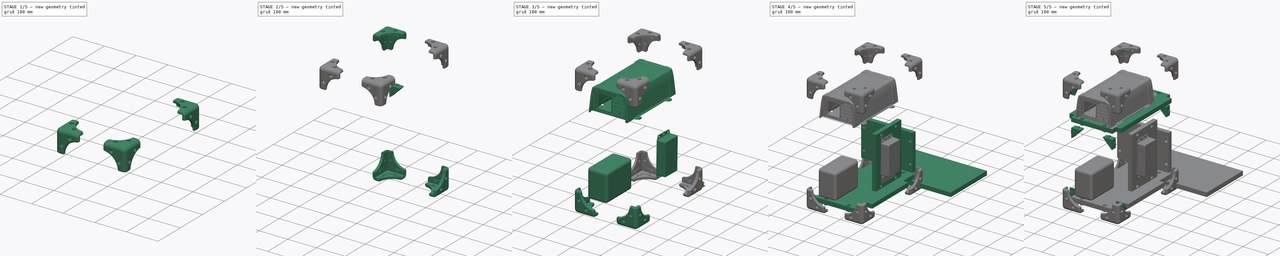
[diagram: build sequence overview — one tinted view per stage of 5, left to right]
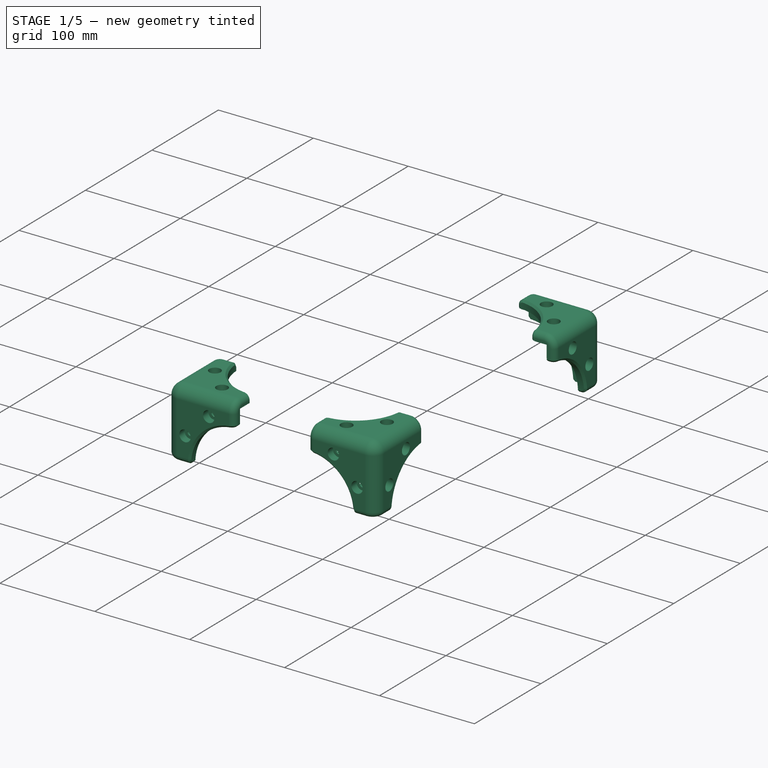
[diagram: stage 1 of 5 — iso view after this stage's code; geometry added in this stage tinted green]
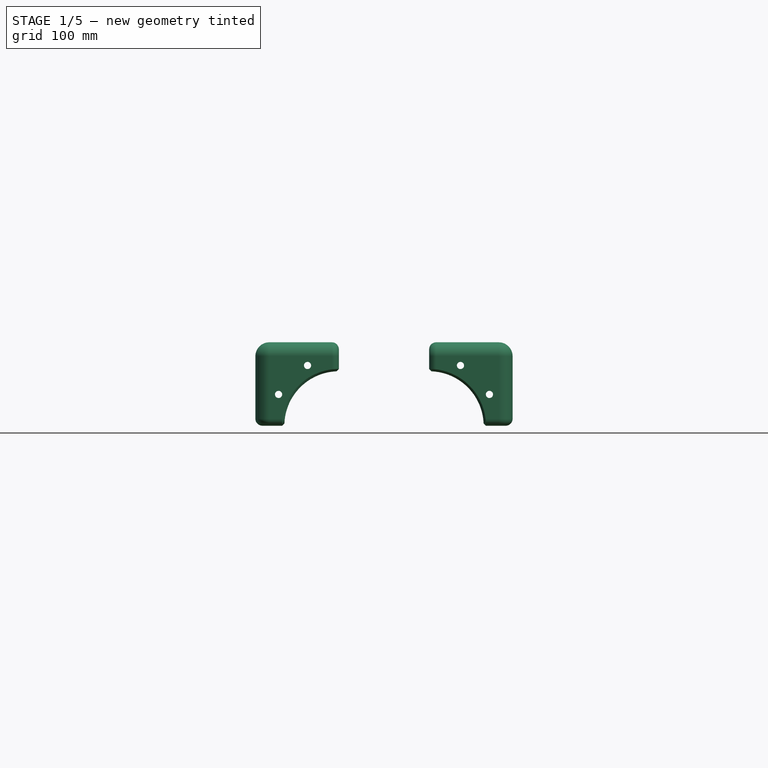
[diagram: stage 1 of 5 — front view after this stage's code; geometry added in this stage tinted green]
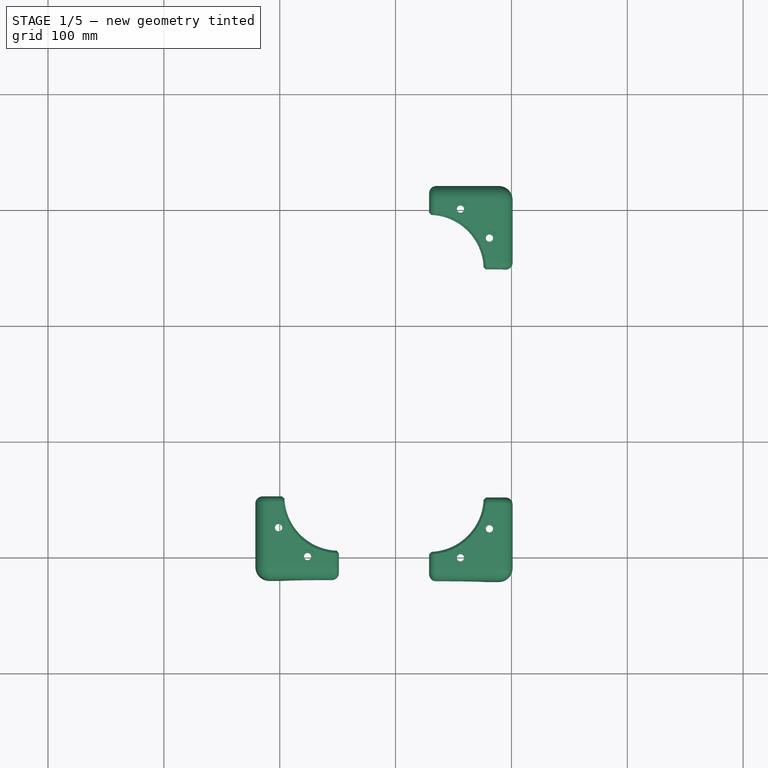
[diagram: stage 1 of 5 — top view after this stage's code; geometry added in this stage tinted green]
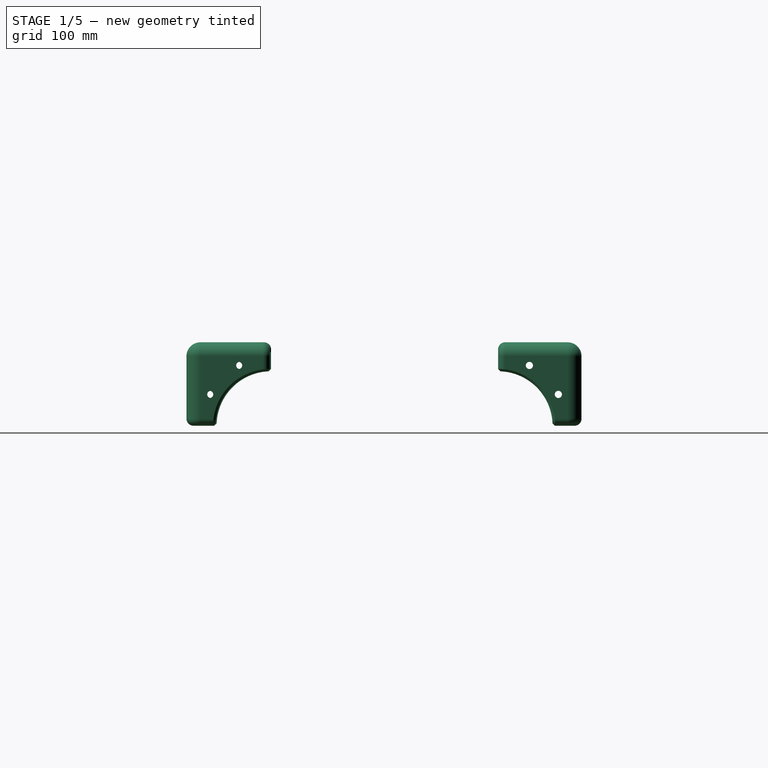
[diagram: stage 1 of 5 — right view after this stage's code; geometry added in this stage tinted green]
FCSTD DOCUMENT  (FreeCAD 0.16R6706 (Git))
Label: Solarbox_v_05_boxframe
License: All rights reserved
LicenseURL: http://en.wikipedia.org/wiki/All_rights_reserved
objects: Part::Feature×76, PartDesign::Fillet×32, PartDesign::Chamfer×24, Part::Compound×23, Part::FeaturePython×20, PartDesign::Pocket×12, App::FeaturePython×12, Sketcher::SketchObject×7, Part::Box×3, PartDesign::Body×3, Part::MultiFuse×2, PartDesign::Pad×1, Part::Fillet×1
note: 217 computed .brp shape members not serialized (recipe doc carries the construction recipe); baked Part::Feature solids carry a one-line shape summary decoded from their .brp

FEATURE [PartDesign::Pocket] Pocket003024
  Length = 2
  Placement = pos=(201,-321,451) rot=(0,1,0;3.14159rad)
  Type = 0
FEATURE [PartDesign::Fillet] Fillet004005025
  Base = -> Pocket003024 [Edge4,Edge5,Edge25]
  Placement = pos=(201,-321,451) rot=(0,1,0;3.14159rad)
  Radius = 12
FEATURE [PartDesign::Fillet] Fillet004005026  label="Fillet004005046"
  Base = -> Fillet004005025 [Edge75,Edge33,Edge61]
  Placement = pos=(201,-321,451) rot=(0,1,0;3.14159rad)
  Radius = 6
FEATURE [PartDesign::Fillet] Fillet004005027
  Base = -> Fillet004005026 [Edge5,Edge16,Edge20]
  Placement = pos=(201,-321,451) rot=(0,1,0;3.14159rad)
  Radius = 6
FEATURE [PartDesign::Fillet] Fillet004005028
  Base = -> Fillet004005027 [Edge34,Edge71,Edge47]
  Placement = pos=(201,-321,451) rot=(0,1,0;3.14159rad)
  Radius = 6
FEATURE [PartDesign::Chamfer] Chamfer015
  Base = -> Fillet004005028 [Edge45]
  Placement = pos=(201,-321,451) rot=(0,1,0;3.14159rad)
  Size = 2
FEATURE [PartDesign::Chamfer] Chamfer016
  Base = -> Chamfer015 [Edge58]
  Placement = pos=(201,-321,451) rot=(0,1,0;3.14159rad)
  Size = 2
FEATURE [PartDesign::Chamfer] Chamfer017
  Base = -> Chamfer016 [Edge159]
  Placement = pos=(201,-321,451) rot=(0,1,0;3.14159rad)
  Size = 2
FEATURE [PartDesign::Pocket] Pocket003025
  Length = 2
  Placement = pos=(-21,-320,451) rot=(0,1,0;1.5708rad)
  Type = 0
FEATURE [PartDesign::Fillet] Fillet004005029  label="Fillet004005047"
  Base = -> Pocket003025 [Edge4,Edge5,Edge25]
  Placement = pos=(-21,-320,451) rot=(0,1,0;1.5708rad)
  Radius = 12
FEATURE [PartDesign::Fillet] Fillet004005030  label="Fillet004005048"
  Base = -> Fillet004005029 [Edge75,Edge33,Edge61]
  Placement = pos=(-21,-320,451) rot=(0,1,0;1.5708rad)
  Radius = 6
FEATURE [PartDesign::Fillet] Fillet004005031  label="Fillet004005049"
  Base = -> Fillet004005030 [Edge5,Edge16,Edge20]
  Placement = pos=(-21,-320,451) rot=(0,1,0;1.5708rad)
  Radius = 6
FEATURE [PartDesign::Fillet] Fillet004005032  label="Fillet004005050"
  Base = -> Fillet004005031 [Edge34,Edge71,Edge47]
  Placement = pos=(-21,-320,451) rot=(0,1,0;1.5708rad)
  Radius = 6
FEATURE [PartDesign::Chamfer] Chamfer018
  Base = -> Fillet004005032 [Edge45]
  Placement = pos=(-21,-320,451) rot=(0,1,0;1.5708rad)
  Size = 2
FEATURE [PartDesign::Chamfer] Chamfer019
  Base = -> Chamfer018 [Edge58]
  Placement = pos=(-21,-320,451) rot=(0,1,0;1.5708rad)
  Size = 2
FEATURE [PartDesign::Chamfer] Chamfer020
  Base = -> Chamfer019 [Edge159]
  Placement = pos=(-21,-320,451) rot=(0,1,0;1.5708rad)
  Size = 2
FEATURE [PartDesign::Pocket] Pocket003026
  Length = 2
  Placement = pos=(201,20,451) rot=(0.707107,-0.707107,0;3.14159rad)
  Type = 0
FEATURE [PartDesign::Fillet] Fillet004005033  label="Fillet004005051"
  Base = -> Pocket003026 [Edge4,Edge5,Edge25]
  Placement = pos=(201,20,451) rot=(0.707107,-0.707107,0;3.14159rad)
  Radius = 12
FEATURE [PartDesign::Fillet] Fillet004005034  label="Fillet004005052"
  Base = -> Fillet004005033 [Edge75,Edge33,Edge61]
  Placement = pos=(201,20,451) rot=(0.707107,-0.707107,0;3.14159rad)
  Radius = 6
FEATURE [PartDesign::Fillet] Fillet004005035  label="Fillet004005053"
  Base = -> Fillet004005034 [Edge5,Edge16,Edge20]
  Placement = pos=(201,20,451) rot=(0.707107,-0.707107,0;3.14159rad)
  Radius = 6
FEATURE [PartDesign::Fillet] Fillet004005036  label="Fillet004005054"
  Base = -> Fillet004005035 [Edge34,Edge71,Edge47]
  Placement = pos=(201,20,451) rot=(0.707107,-0.707107,0;3.14159rad)
  Radius = 6
FEATURE [PartDesign::Chamfer] Chamfer021
  Base = -> Fillet004005036 [Edge45]
  Placement = pos=(201,20,451) rot=(0.707107,-0.707107,0;3.14159rad)
  Size = 2
FEATURE [PartDesign::Chamfer] Chamfer022
  Base = -> Chamfer021 [Edge58]
  Placement = pos=(201,20,451) rot=(0.707107,-0.707107,0;3.14159rad)
  Size = 2
FEATURE [PartDesign::Chamfer] Chamfer023
  Base = -> Chamfer022 [Edge159]
  Placement = pos=(201,20,451) rot=(0.707107,-0.707107,0;3.14159rad)
  Size = 2
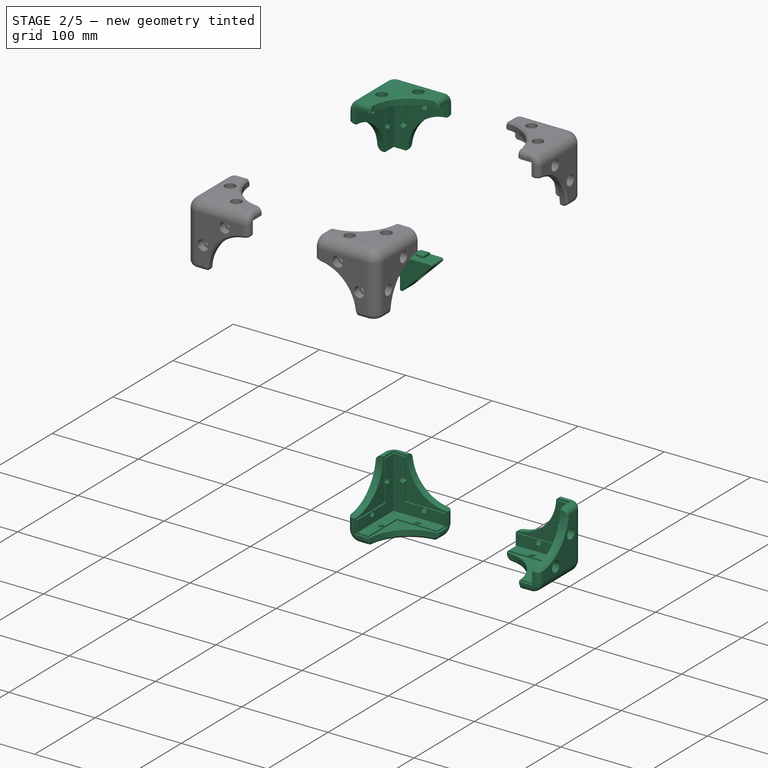
[diagram: stage 2 of 5 — iso view after this stage's code; geometry added in this stage tinted green]
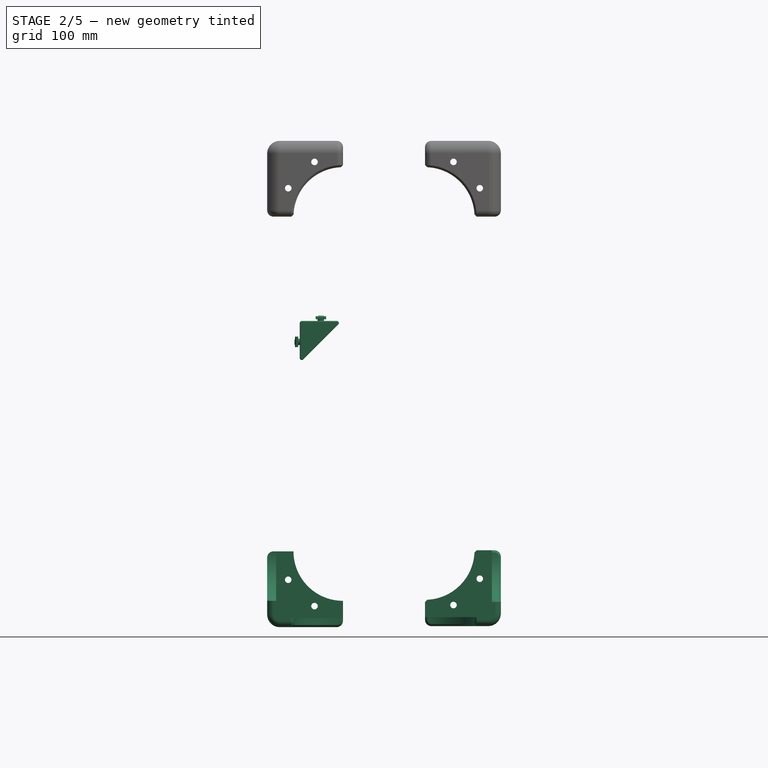
[diagram: stage 2 of 5 — front view after this stage's code; geometry added in this stage tinted green]
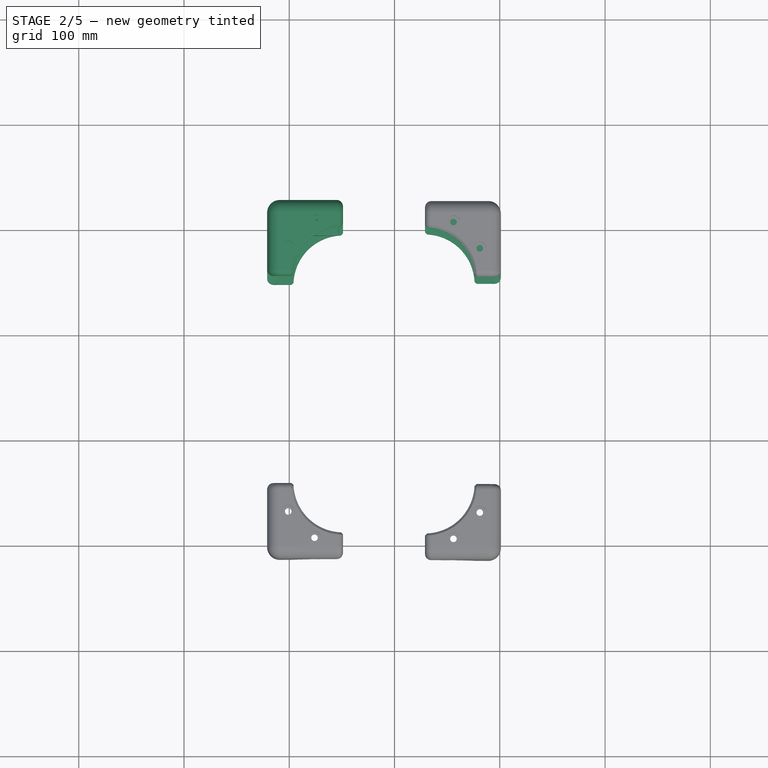
[diagram: stage 2 of 5 — top view after this stage's code; geometry added in this stage tinted green]
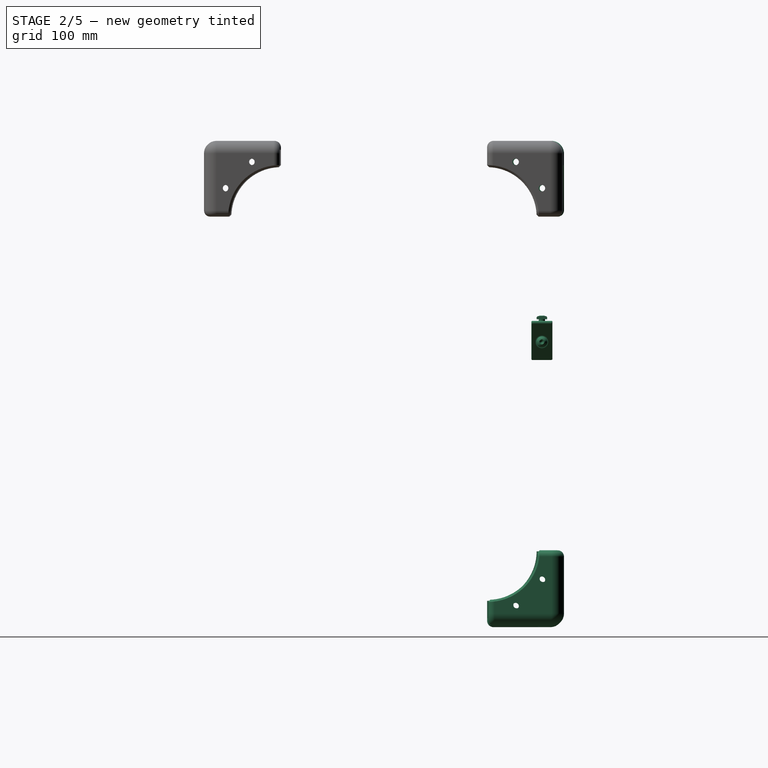
[diagram: stage 2 of 5 — right view after this stage's code; geometry added in this stage tinted green]
FEATURE [PartDesign::Pocket] Pocket003021
  Length = 2
  Placement = pos=(-21,20,-11) rot=(1,0,0;1.5708rad)
  Type = 0
FEATURE [PartDesign::Fillet] Fillet004005012
  Base = -> Pocket003021 [Edge4,Edge5,Edge25]
  Placement = pos=(-21,20,-11) rot=(1,0,0;1.5708rad)
  Radius = 12
FEATURE [PartDesign::Fillet] Fillet004005013  label="Fillet004005039"
  Base = -> Fillet004005012 [Edge75,Edge33,Edge61]
  Placement = pos=(-21,20,-11) rot=(1,0,0;1.5708rad)
  Radius = 6
FEATURE [PartDesign::Fillet] Fillet004005014
  Base = -> Fillet004005013 [Edge5,Edge16,Edge20]
  Placement = pos=(-21,20,-11) rot=(1,0,0;1.5708rad)
  Radius = 6
FEATURE [PartDesign::Fillet] Fillet004005015
  Base = -> Fillet004005014 [Edge34,Edge71,Edge47]
  Placement = pos=(-21,20,-11) rot=(1,0,0;1.5708rad)
  Radius = 6
FEATURE [PartDesign::Chamfer] Chamfer006
  Base = -> Fillet004005015 [Edge45]
  Placement = pos=(-21,20,-11) rot=(1,0,0;1.5708rad)
  Size = 2
FEATURE [PartDesign::Pocket] Pocket003022
  Length = 2
  Placement = pos=(201,21,-10) rot=(0,0,1;3.14159rad)
  Type = 0
FEATURE [PartDesign::Fillet] Fillet004005016
  Base = -> Pocket003022 [Edge4,Edge5,Edge25]
  Placement = pos=(201,21,-10) rot=(0,0,1;3.14159rad)
  Radius = 12
FEATURE [PartDesign::Fillet] Fillet004005017  label="Fillet004005040"
  Base = -> Fillet004005016 [Edge75,Edge33,Edge61]
  Placement = pos=(201,21,-10) rot=(0,0,1;3.14159rad)
  Radius = 6
FEATURE [PartDesign::Fillet] Fillet004005018
  Base = -> Fillet004005017 [Edge5,Edge16,Edge20]
  Placement = pos=(201,21,-10) rot=(0,0,1;3.14159rad)
  Radius = 6
FEATURE [PartDesign::Fillet] Fillet004005019
  Base = -> Fillet004005018 [Edge34,Edge71,Edge47]
  Placement = pos=(201,21,-10) rot=(0,0,1;3.14159rad)
  Radius = 6
FEATURE [PartDesign::Chamfer] Chamfer009
  Base = -> Fillet004005019 [Edge45]
  Placement = pos=(201,21,-10) rot=(0,0,1;3.14159rad)
  Size = 2
FEATURE [PartDesign::Chamfer] Chamfer010
  Base = -> Chamfer009 [Edge58]
  Placement = pos=(201,21,-10) rot=(0,0,1;3.14159rad)
  Size = 2
FEATURE [PartDesign::Chamfer] Chamfer011
  Base = -> Chamfer010 [Edge159]
  Placement = pos=(201,21,-10) rot=(0,0,1;3.14159rad)
  Size = 2
FEATURE [Part::Feature] Body010032  label="m6nutplate036"
  Placement = pos=(-1.5,15,5) rot=(0,-1,0;1.5708rad)
  shape: bbox 3 x 10 x 10 mm, 9 faces (baked)
FEATURE [Part::Feature] Body010033  label="m6nutplate037"
  Placement = pos=(15,41.5,5) rot=(0.57735,0.57735,0.57735;4.18879rad)
  shape: bbox 10 x 3 x 10 mm, 9 faces (baked)
FEATURE [Part::Feature] Screw018025  label="M6x12-Screw036"
  Placement = pos=(20,33,10) rot=(1,0,0;1.5708rad)
  shape: bbox 10.5 x 15.3 x 10.5 mm, 15 faces (baked)
FEATURE [Part::Feature] Screw018026  label="M6x12-Screw037"
  Placement = pos=(7,20,10) rot=(0,1,0;1.5708rad)
  shape: bbox 15.3 x 10.5 x 10.5 mm, 15 faces (baked)
FEATURE [Part::Feature] Fillet004005020  label="Fillet004005041"
  shape: bbox 37.5 x 37.5 x 20 mm, 26 faces (baked)
FEATURE [Part::Compound] Compound022
  Links = -> [Body010032,Fillet004005020,Screw018026,Body010033,Screw018025]
  Placement = pos=(10,10,240) rot=(1,0,0;1.5708rad)
FEATURE [PartDesign::Pocket] Pocket003023
  Length = 2
  Placement = pos=(-21,21,451) rot=(1,0,0;3.14159rad)
  Type = 0
FEATURE [PartDesign::Fillet] Fillet004005021  label="Fillet004005042"
  Base = -> Pocket003023 [Edge4,Edge5,Edge25]
  Placement = pos=(-21,21,451) rot=(1,0,0;3.14159rad)
  Radius = 12
FEATURE [PartDesign::Fillet] Fillet004005022  label="Fillet004005043"
  Base = -> Fillet004005021 [Edge75,Edge33,Edge61]
  Placement = pos=(-21,21,451) rot=(1,0,0;3.14159rad)
  Radius = 6
FEATURE [PartDesign::Fillet] Fillet004005023  label="Fillet004005044"
  Base = -> Fillet004005022 [Edge5,Edge16,Edge20]
  Placement = pos=(-21,21,451) rot=(1,0,0;3.14159rad)
  Radius = 6
FEATURE [PartDesign::Fillet] Fillet004005024  label="Fillet004005045"
  Base = -> Fillet004005023 [Edge34,Edge71,Edge47]
  Placement = pos=(-21,21,451) rot=(1,0,0;3.14159rad)
  Radius = 6
FEATURE [PartDesign::Chamfer] Chamfer012
  Base = -> Fillet004005024 [Edge45]
  Placement = pos=(-21,21,451) rot=(1,0,0;3.14159rad)
  Size = 2
FEATURE [PartDesign::Chamfer] Chamfer013
  Base = -> Chamfer012 [Edge58]
  Placement = pos=(-21,21,451) rot=(1,0,0;3.14159rad)
  Size = 2
FEATURE [PartDesign::Chamfer] Chamfer014
  Base = -> Chamfer013 [Edge159]
  Placement = pos=(-21,21,451) rot=(1,0,0;3.14159rad)
  Size = 2
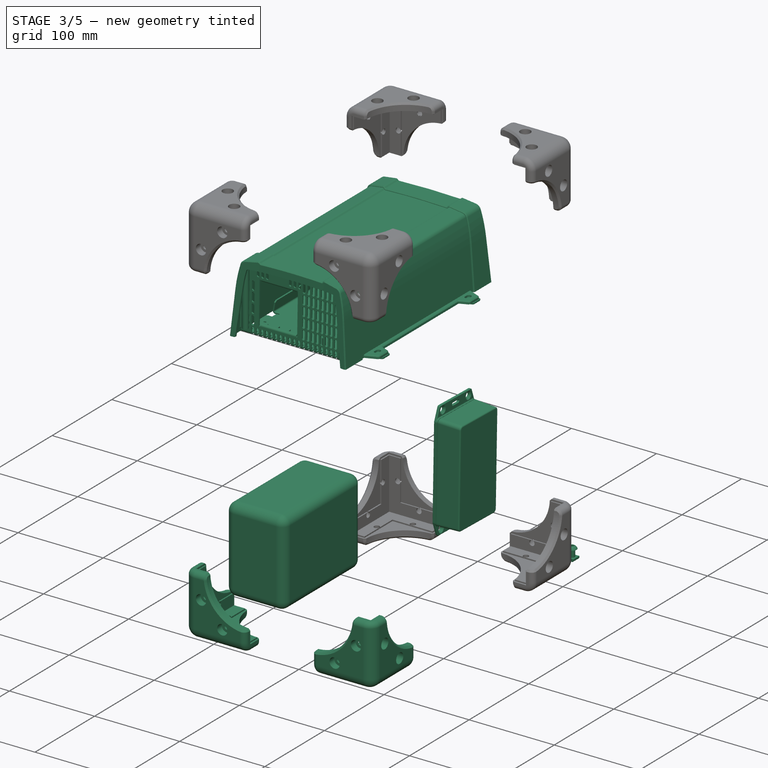
[diagram: stage 3 of 5 — iso view after this stage's code; geometry added in this stage tinted green]
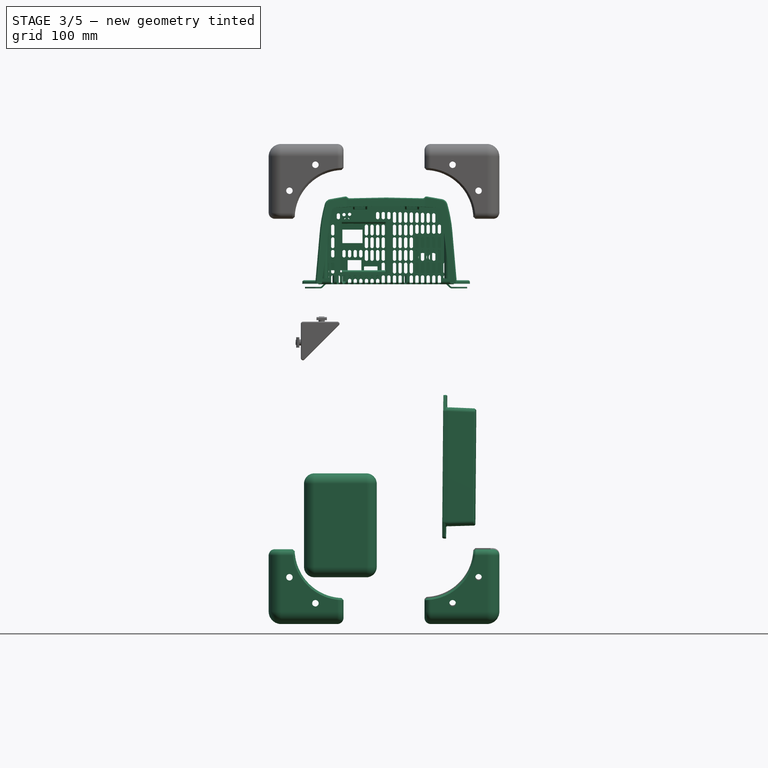
[diagram: stage 3 of 5 — front view after this stage's code; geometry added in this stage tinted green]
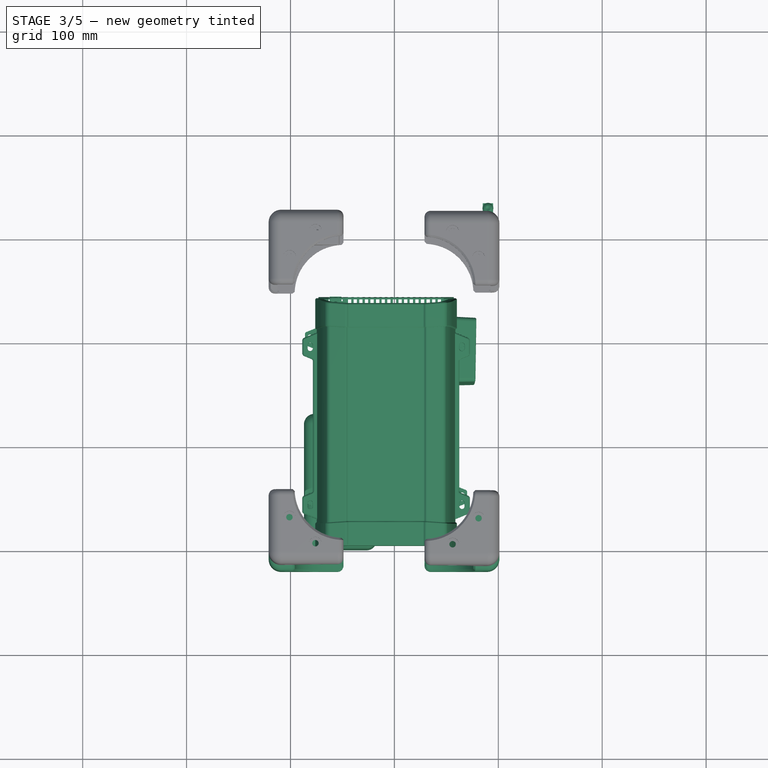
[diagram: stage 3 of 5 — top view after this stage's code; geometry added in this stage tinted green]
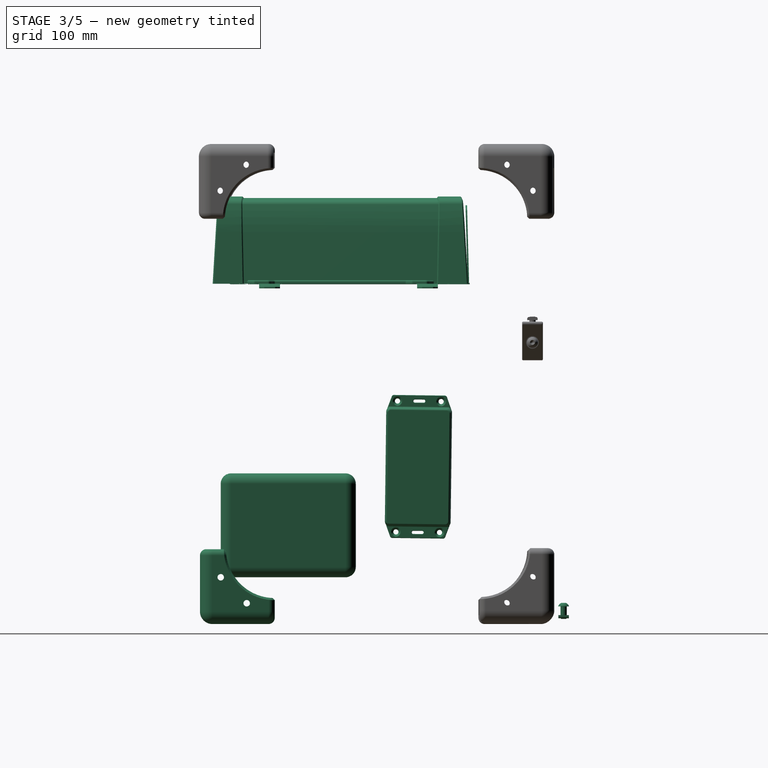
[diagram: stage 3 of 5 — right view after this stage's code; geometry added in this stage tinted green]
FEATURE [Part::FeaturePython] Screw018024  label="M6x12-Screw035"  # Fasteners workbench fastener (typed FeaturePython)
  diameter = 4
  invert = false
  length = 1
  matchOuter = false
  offset = 0
  thread = false
  type = 20
FEATURE [Part::Feature] Body010031  label="m6nutplate035"
  Placement = pos=(5,-5,-8.39) rot=(0,1,0;3.14159rad)
  shape: bbox 10 x 10 x 3 mm, 9 faces (baked)
FEATURE [App::FeaturePython] circularEdgeConstraint012  # a2plus constraint (typed FeaturePython)
  Object1 = Screw
  Object2 = Body001
  SubElement1 = Edge7
  SubElement2 = Edge20
  Type = circularEdge
  directionConstraint = 1
  lockRotation = false
  offset = 0
FEATURE [Part::Compound] Compound020  label="nutplate12screw011"
  Links = -> [Screw018024,circularEdgeConstraint012,Body010031]
  Placement = pos=(190,30,6) rot=(0,0,1;0rad)
FEATURE [Part::Box] Box003  label="MPPT"
  Height = 100
  Length = 130
  Placement = pos=(290,128,10) rot=(0,0,1;0rad)
  Width = 70
FEATURE [Part::Fillet] Fillet007  label="MPPT               "
  Base = -> Box003
  Edges = 12 edges r=10: [Edge1,Edge2,Edge3,Edge4,Edge5,Edge6,Edge7,Edge8,Edge9,Edge10,Edge11,Edge12]
  Placement = pos=(211,-590,24) rot=(0,0,1;1.5708rad)
FEATURE [Part::Feature] Part__Feature  label="375VA-inverter_bottomplate_Schuko-bend_20150429"
  Placement = pos=(92,-64,376) rot=(0,0,1;3.14159rad)
  shape: bbox 156 x 232.5 x 80.02 mm, 1132 faces (baked)
FEATURE [Part::Feature] Part__Feature001  label="375VA-inverter_bottomplate_Schuko-bend_20150430"
  Placement = pos=(92,-64,376) rot=(0,0,1;3.14159rad)
  shape: bbox 4 x 4 x 10 mm, 4 faces (baked)
FEATURE [Part::Feature] Part__Feature002  label="375VA-inverter_bottomplate_Schuko-bend_20150431"
  Placement = pos=(92,-64,376) rot=(0,0,1;3.14159rad)
  shape: bbox 6 x 6 x 10 mm, 4 faces (baked)
FEATURE [Part::Feature] Part__Feature003  label="375VA-inverter_housing_20150429"
  Placement = pos=(92,-64,376) rot=(0,0,1;3.14159rad)
  shape: bbox 161.4 x 245.8 x 84.13 mm, 1385 faces (baked)
FEATURE [Part::MultiFuse] Fusion  label="Invertor"
  Placement = pos=(0,0,-60) rot=(0,0,1;0rad)
  Shapes = -> [Part__Feature,Part__Feature001,Part__Feature002,Part__Feature003]
FEATURE [Part::Feature] Part__Feature1213002  label="1591XXBF LID002"
  Placement = pos=(-49.5922,26.5,21.832) rot=(-0.57735,0.57735,0.57735;2.0944rad)
  shape: bbox 138 x 12.61 x 63.32 mm, 220 faces (baked)
FEATURE [Part::Feature] Part__Feature1213003  label="1591XXB BOX002"
  Placement = pos=(0,0,0) rot=(0,0.707107,0.707107;3.14159rad)
  shape: bbox 113.8 x 28.25 x 63.32 mm, 133 faces (baked)
FEATURE [Part::MultiFuse] Fusion002  label="FusionCover"
  Placement = pos=(177.976,-110.123,140.125) rot=(0.575193,-0.579099,0.577752;2.07392rad)
  Shapes = -> [Part__Feature1213002,Part__Feature1213003]
FEATURE [PartDesign::Pocket] Pocket015
  Length = 2
  Placement = pos=(-21,-320,-11) rot=(0,0,1;0rad)
  Type = 0
FEATURE [PartDesign::Fillet] Fillet
  Base = -> Pocket015 [Edge4,Edge5,Edge25]
  Placement = pos=(-21,-320,-11) rot=(0,0,1;0rad)
  Radius = 12
FEATURE [PartDesign::Fillet] Fillet001
  Base = -> Fillet [Edge75,Edge33,Edge61]
  Placement = pos=(-21,-320,-11) rot=(0,0,1;0rad)
  Radius = 6
FEATURE [PartDesign::Fillet] Fillet002
  Base = -> Fillet001 [Edge5,Edge16,Edge20]
  Placement = pos=(-21,-320,-11) rot=(0,0,1;0rad)
  Radius = 6
FEATURE [PartDesign::Fillet] Fillet003
  Base = -> Fillet002 [Edge34,Edge71,Edge47]
  Placement = pos=(-21,-320,-11) rot=(0,0,1;0rad)
  Radius = 6
FEATURE [PartDesign::Chamfer] Chamfer
  Base = -> Fillet003 [Edge45]
  Placement = pos=(-21,-320,-11) rot=(0,0,1;0rad)
  Size = 2
FEATURE [PartDesign::Chamfer] Chamfer001
  Base = -> Chamfer [Edge58]
  Placement = pos=(-21,-320,-11) rot=(0,0,1;0rad)
  Size = 2
FEATURE [PartDesign::Chamfer] Chamfer002
  Base = -> Chamfer001 [Edge159]
  Placement = pos=(-21,-320,-11) rot=(0,0,1;0rad)
  Size = 2
FEATURE [PartDesign::Pocket] Pocket003020
  Length = 2
  Placement = pos=(201,-320,-11) rot=(0,0,1;1.5708rad)
  Type = 0
FEATURE [PartDesign::Fillet] Fillet004005008  label="Fillet004005038"
  Base = -> Pocket003020 [Edge4,Edge5,Edge25]
  Placement = pos=(201,-320,-11) rot=(0,0,1;1.5708rad)
  Radius = 12
FEATURE [PartDesign::Fillet] Fillet004005009
  Base = -> Fillet004005008 [Edge75,Edge33,Edge61]
  Placement = pos=(201,-320,-11) rot=(0,0,1;1.5708rad)
  Radius = 6
FEATURE [PartDesign::Fillet] Fillet004005010
  Base = -> Fillet004005009 [Edge5,Edge16,Edge20]
  Placement = pos=(201,-320,-11) rot=(0,0,1;1.5708rad)
  Radius = 6
FEATURE [PartDesign::Fillet] Fillet004005011
  Base = -> Fillet004005010 [Edge34,Edge71,Edge47]
  Placement = pos=(201,-320,-11) rot=(0,0,1;1.5708rad)
  Radius = 6
FEATURE [PartDesign::Chamfer] Chamfer003
  Base = -> Fillet004005011 [Edge45]
  Placement = pos=(201,-320,-11) rot=(0,0,1;1.5708rad)
  Size = 2
FEATURE [PartDesign::Chamfer] Chamfer004
  Base = -> Chamfer003 [Edge58]
  Placement = pos=(201,-320,-11) rot=(0,0,1;1.5708rad)
  Size = 2
FEATURE [PartDesign::Chamfer] Chamfer005
  Base = -> Chamfer004 [Edge159]
  Placement = pos=(201,-320,-11) rot=(0,0,1;1.5708rad)
  Size = 2
FEATURE [PartDesign::Chamfer] Chamfer007
  Base = -> Chamfer006 [Edge58]
  Placement = pos=(-21,20,-11) rot=(1,0,0;1.5708rad)
  Size = 2
FEATURE [PartDesign::Chamfer] Chamfer008
  Base = -> Chamfer007 [Edge159]
  Placement = pos=(-21,20,-11) rot=(1,0,0;1.5708rad)
  Size = 2
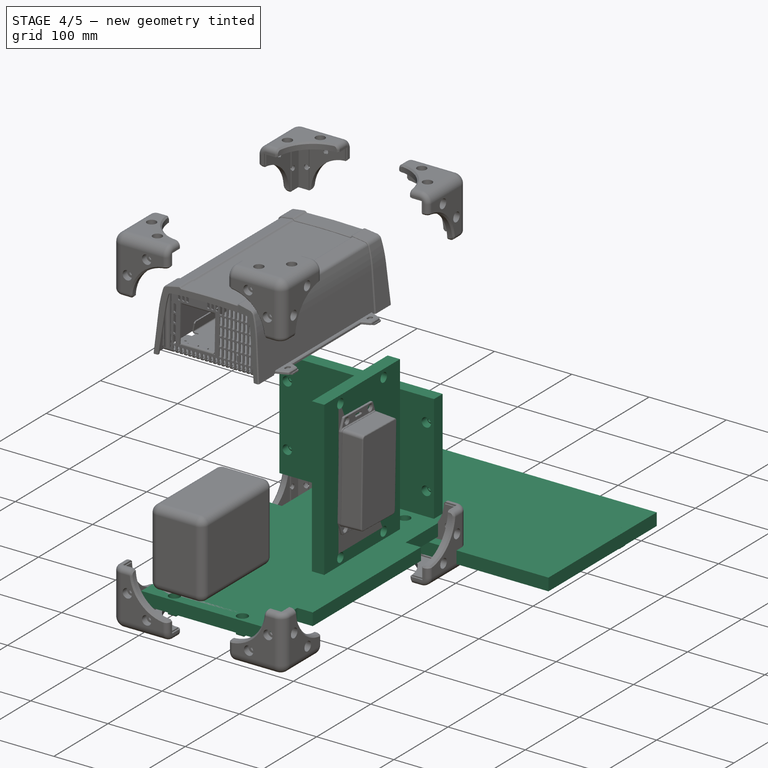
[diagram: stage 4 of 5 — iso view after this stage's code; geometry added in this stage tinted green]
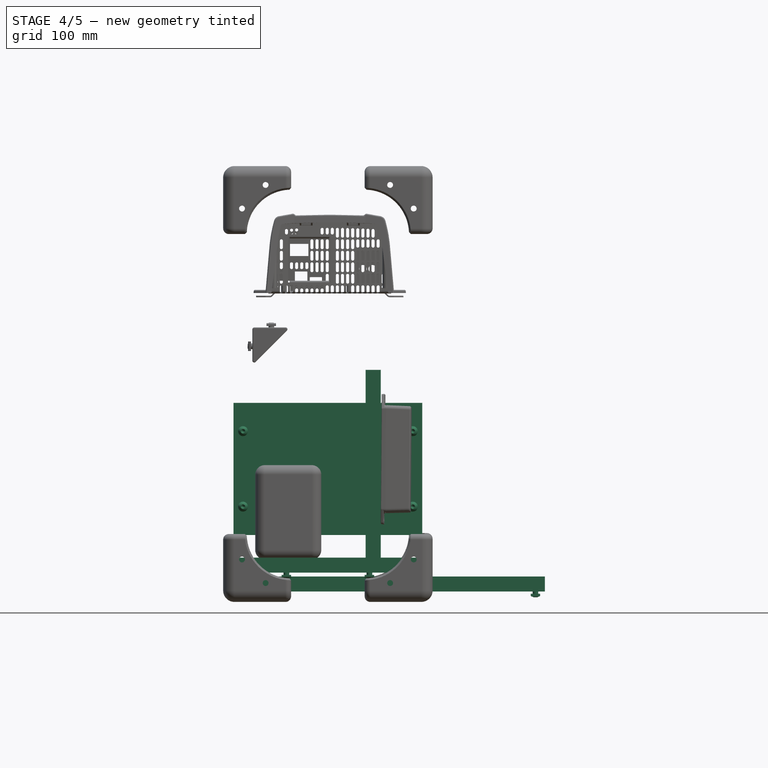
[diagram: stage 4 of 5 — front view after this stage's code; geometry added in this stage tinted green]
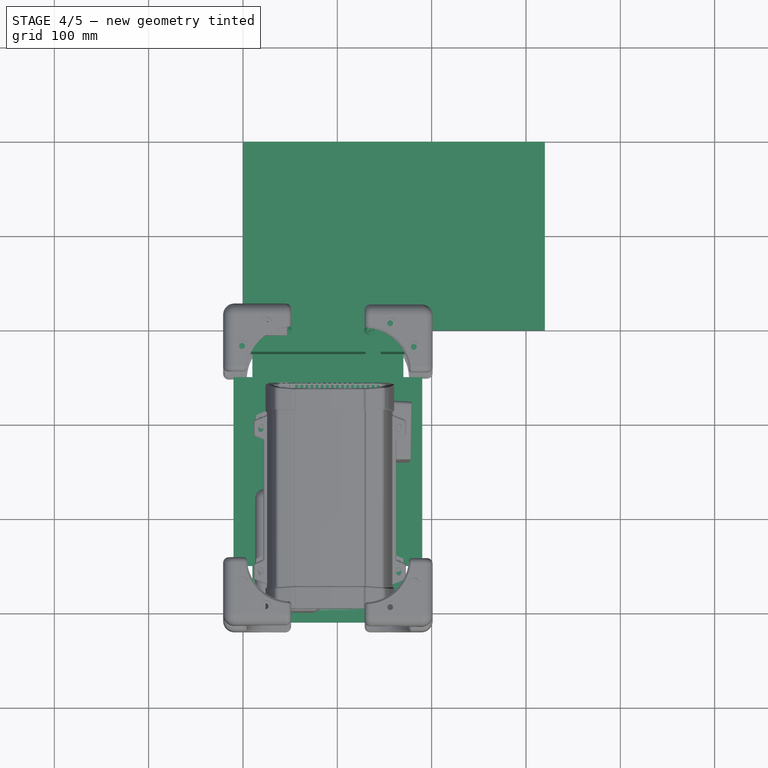
[diagram: stage 4 of 5 — top view after this stage's code; geometry added in this stage tinted green]
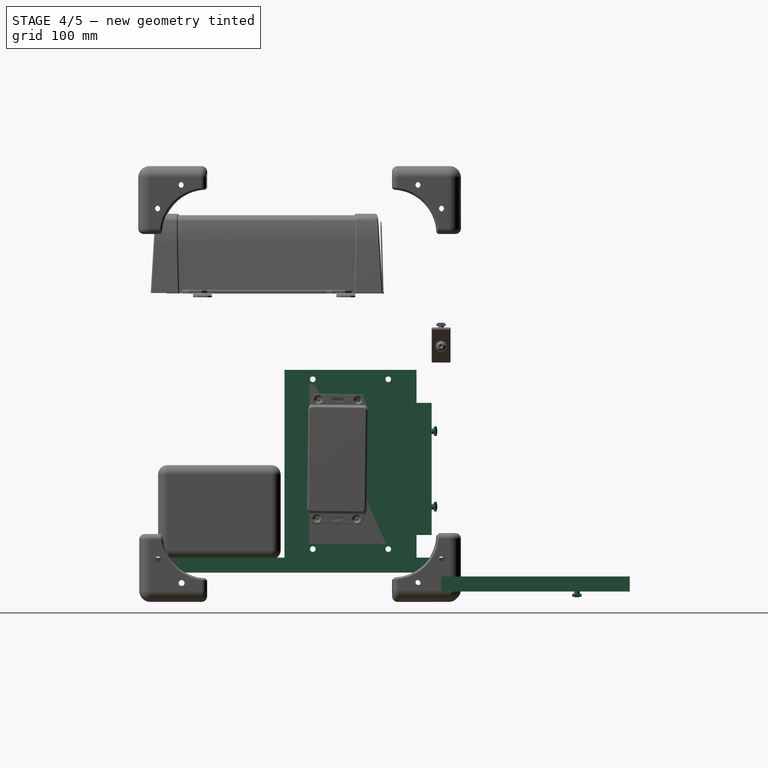
[diagram: stage 4 of 5 — right view after this stage's code; geometry added in this stage tinted green]
FEATURE [Part::FeaturePython] Screw003  label="M6x12-Screw027"  # Fasteners workbench fastener (typed FeaturePython)
  diameter = 4
  invert = false
  length = 1
  matchOuter = false
  offset = 0
  thread = false
  type = 20
FEATURE [Part::Feature] Body010017  label="m6nutplate027"
  Placement = pos=(5,-5,-8.39) rot=(0,1,0;3.14159rad)
  shape: bbox 10 x 10 x 3 mm, 9 faces (baked)
FEATURE [App::FeaturePython] circularEdgeConstraint004  # a2plus constraint (typed FeaturePython)
  Object1 = Screw
  Object2 = Body001
  SubElement1 = Edge7
  SubElement2 = Edge20
  Type = circularEdge
  directionConstraint = 1
  lockRotation = false
  offset = 0
FEATURE [Part::Compound] Compound010  label="nutplate12screw003"
  Links = -> [Screw003,circularEdgeConstraint004,Body010017]
  Placement = pos=(310,144,6) rot=(0,0,1;0rad)
FEATURE [Part::Box] Box001  label="Würfel001"
  Height = 16
  Length = 320
  Width = 200
FEATURE [PartDesign::Body] Body010018
FEATURE [Sketcher::SketchObject] Sketch002
  Placement = pos=(0,0,16) rot=(0,0,1;0rad)
  sketch-geometry (20):
    g0: LineSegment StartX=0 StartY=20 StartZ=0 EndX=20 EndY=20 EndZ=0
    g1: LineSegment StartX=20 StartY=20 StartZ=0 EndX=20 EndY=0 EndZ=0
    g2: LineSegment StartX=20 StartY=0 StartZ=0 EndX=0 EndY=0 EndZ=0
    g3: LineSegment StartX=0 StartY=0 StartZ=0 EndX=0 EndY=20 EndZ=0
    g4: LineSegment StartX=0 StartY=200 StartZ=0 EndX=20 EndY=200 EndZ=0
    g5: LineSegment StartX=20 StartY=200 StartZ=0 EndX=20 EndY=180 EndZ=0
    g6: LineSegment StartX=20 StartY=180 StartZ=0 EndX=0 EndY=180 EndZ=0
    g7: LineSegment StartX=0 StartY=180 StartZ=0 EndX=0 EndY=200 EndZ=0
    g8: LineSegment StartX=300 StartY=200 StartZ=0 EndX=320 EndY=200 EndZ=0
    g9: LineSegment StartX=320 StartY=200 StartZ=0 EndX=320 EndY=180 EndZ=0
    g10: LineSegment StartX=320 StartY=180 StartZ=0 EndX=300 EndY=180 EndZ=0
    g11: LineSegment StartX=300 StartY=180 StartZ=0 EndX=300 EndY=200 EndZ=0
    g12: LineSegment StartX=300 StartY=20 StartZ=0 EndX=320 EndY=20 EndZ=0
    g13: LineSegment StartX=320 StartY=20 StartZ=0 EndX=320 EndY=0 EndZ=0
    g14: LineSegment StartX=320 StartY=0 StartZ=0 EndX=300 EndY=0 EndZ=0
    g15: LineSegment StartX=300 StartY=0 StartZ=0 EndX=300 EndY=20 EndZ=0
    g16: Circle CenterX=10 CenterY=56 CenterZ=0 NormalX=0 NormalY=0 NormalZ=1 Radius=3
    g17: Circle CenterX=10 CenterY=144 CenterZ=0 NormalX=0 NormalY=0 NormalZ=1 Radius=3
    g18: Circle CenterX=310 CenterY=144 CenterZ=0 NormalX=0 NormalY=0 NormalZ=1 Radius=3
    g19: Circle CenterX=310 CenterY=56 CenterZ=0 NormalX=0 NormalY=0 NormalZ=1 Radius=3
  constraints (59):
    c: Coincident(g0,g1)
    c: Coincident(g1,g2)
    c: Coincident(g2,g3)
    c: Coincident(g3,g0)
    c: Horizontal(g0)
    c: Horizontal(g2)
    c: Vertical(g1)
    c: Vertical(g3)
    c: DistanceX(g0,g0) = 20
    c: DistanceY(g1,g1) = 20
    c: Coincident(g2,g-1)
    c: Coincident(g4,g5)
    c: Coincident(g5,g6)
    c: Coincident(g6,g7)
    c: Coincident(g7,g4)
    c: Horizontal(g4)
    c: Horizontal(g6)
    c: Vertical(g5)
    c: Vertical(g7)
    c: DistanceY(g-1,g4) = 200
    c: DistanceX(g0,g6) = 0
    c: DistanceX(g4,g4) = 20
    c: DistanceY(g5,g5) = 20
    c: Coincident(g8,g9)
    c: Coincident(g9,g10)
    c: Coincident(g10,g11)
    c: Coincident(g11,g8)
    c: Horizontal(g8)
    c: Horizontal(g10)
    c: Vertical(g9)
    c: Vertical(g11)
    c: DistanceX(g8,g8) = 20
    c: DistanceY(g9,g9) = 20
    c: DistanceX(g4,g8) = 320
    c: DistanceY(g8,g4) = 0
    c: Coincident(g12,g13)
    c: Coincident(g13,g14)
    c: Coincident(g14,g15)
    c: Coincident(g15,g12)
    c: Horizontal(g12)
    c: Horizontal(g14)
    c: Vertical(g13)
    c: Vertical(g15)
    c: DistanceX(g12,g12) = 20
    c: DistanceY(g13,g13) = 20
    c: DistanceY(g1,g14) = 0
    c: DistanceX(g-1,g13) = 320
    c: DistanceX(g16,g0) = 10
    c: DistanceY(g1,g16) = 56
    c: Radius(g16) = 3
    c: DistanceY(g17,g5) = 36
    c: DistanceX(g17,g5) = 10
    c: Radius(g17) = 3
    c: DistanceX(g18,g9) = 10
    c: DistanceY(g18,g10) = 36
    c: Radius(g18) = 3
    c: DistanceX(g19,g12) = 10
    c: DistanceY(g12,g19) = 36
    c: Radius(g19) = 3
FEATURE [PartDesign::Pocket] Pocket003017
  Length = 16
  Type = 0
FEATURE [Sketcher::SketchObject] Sketch003
  Placement = pos=(0,0,16) rot=(0,0,1;0rad)
  sketch-geometry (4):
    g0: Circle CenterX=10 CenterY=144 CenterZ=0 NormalX=0 NormalY=0 NormalZ=1 Radius=7
    g1: Circle CenterX=10 CenterY=56 CenterZ=0 NormalX=0 NormalY=0 NormalZ=1 Radius=7
    g2: Circle CenterX=310 CenterY=144 CenterZ=0 NormalX=0 NormalY=0 NormalZ=1 Radius=7
    g3: Circle CenterX=310 CenterY=56 CenterZ=0 NormalX=0 NormalY=0 NormalZ=1 Radius=7
  constraints (6):
    c: DistanceY(g-1,g1) = 56
    c: DistanceX(g-1,g1) = 10
    c: Radius(g1) = 7
    c: Equal(g0,g1)
    c: Equal(g0,g2)
    c: Equal(g2,g3)
FEATURE [PartDesign::Pocket] Pocket003018
  Length = 10
  Type = 0
FEATURE [Part::FeaturePython] Screw018017  label="M6x12-Screw028"  # Fasteners workbench fastener (typed FeaturePython)
  diameter = 4
  invert = false
  length = 1
  matchOuter = false
  offset = 0
  thread = false
  type = 20
FEATURE [Part::Feature] Body010019  label="m6nutplate028"
  Placement = pos=(5,-5,-8.39) rot=(0,1,0;3.14159rad)
  shape: bbox 10 x 10 x 3 mm, 9 faces (baked)
FEATURE [App::FeaturePython] circularEdgeConstraint005  # a2plus constraint (typed FeaturePython)
  Object1 = Screw
  Object2 = Body001
  SubElement1 = Edge7
  SubElement2 = Edge20
  Type = circularEdge
  directionConstraint = 1
  lockRotation = false
  offset = 0
FEATURE [Part::Compound] Compound012  label="nutplate12screw004"
  Links = -> [Screw018017,circularEdgeConstraint005,Body010019]
  Placement = pos=(10,56,6) rot=(0,0,1;0rad)
FEATURE [Part::FeaturePython] Screw018018  label="M6x12-Screw029"  # Fasteners workbench fastener (typed FeaturePython)
  diameter = 4
  invert = false
  length = 1
  matchOuter = false
  offset = 0
  thread = false
  type = 20
FEATURE [Part::Feature] Body010020  label="m6nutplate029"
  Placement = pos=(5,-5,-8.39) rot=(0,1,0;3.14159rad)
  shape: bbox 10 x 10 x 3 mm, 9 faces (baked)
FEATURE [App::FeaturePython] circularEdgeConstraint006  # a2plus constraint (typed FeaturePython)
  Object1 = Screw
  Object2 = Body001
  SubElement1 = Edge7
  SubElement2 = Edge20
  Type = circularEdge
  directionConstraint = 1
  lockRotation = false
  offset = 0
FEATURE [Part::Compound] Compound013  label="nutplate12screw005"
  Links = -> [Screw018018,circularEdgeConstraint006,Body010020]
  Placement = pos=(10,144,6) rot=(0,0,1;0rad)
FEATURE [Part::FeaturePython] Screw018019  label="M6x12-Screw030"  # Fasteners workbench fastener (typed FeaturePython)
  diameter = 4
  invert = false
  length = 1
  matchOuter = false
  offset = 0
  thread = false
  type = 20
FEATURE [Part::Feature] Body010021  label="m6nutplate030"
  Placement = pos=(5,-5,-8.39) rot=(0,1,0;3.14159rad)
  shape: bbox 10 x 10 x 3 mm, 9 faces (baked)
FEATURE [App::FeaturePython] circularEdgeConstraint007  # a2plus constraint (typed FeaturePython)
  Object1 = Screw
  Object2 = Body001
  SubElement1 = Edge7
  SubElement2 = Edge20
  Type = circularEdge
  directionConstraint = 1
  lockRotation = false
  offset = 0
FEATURE [Part::Compound] Compound014  label="nutplate12screw006"
  Links = -> [Screw018019,circularEdgeConstraint007,Body010021]
  Placement = pos=(310,56,6) rot=(0,0,1;0rad)
FEATURE [Sketcher::SketchObject] Sketch004
  Placement = pos=(0,0,16) rot=(0,0,1;0rad)
  sketch-geometry (16):
    g0: LineSegment StartX=0 StartY=20 StartZ=0 EndX=60 EndY=20 EndZ=0
    g1: LineSegment StartX=60 StartY=20 StartZ=0 EndX=60 EndY=0 EndZ=0
    g2: LineSegment StartX=60 StartY=0 StartZ=0 EndX=0 EndY=0 EndZ=0
    g3: LineSegment StartX=0 StartY=0 StartZ=0 EndX=0 EndY=20 EndZ=0
    g4: LineSegment StartX=0 StartY=200 StartZ=0 EndX=60 EndY=200 EndZ=0
    g5: LineSegment StartX=60 StartY=200 StartZ=0 EndX=60 EndY=180 EndZ=0
    g6: LineSegment StartX=60 StartY=180 StartZ=0 EndX=0 EndY=180 EndZ=0
    g7: LineSegment StartX=0 StartY=180 StartZ=0 EndX=0 EndY=200 EndZ=0
    g8: LineSegment StartX=260 StartY=200 StartZ=0 EndX=320 EndY=200 EndZ=0
    g9: LineSegment StartX=320 StartY=200 StartZ=0 EndX=320 EndY=180 EndZ=0
    g10: LineSegment StartX=320 StartY=180 StartZ=0 EndX=260 EndY=180 EndZ=0
    g11: LineSegment StartX=260 StartY=180 StartZ=0 EndX=260 EndY=200 EndZ=0
    g12: LineSegment StartX=260 StartY=20 StartZ=0 EndX=320 EndY=20 EndZ=0
    g13: LineSegment StartX=320 StartY=20 StartZ=0 EndX=320 EndY=0 EndZ=0
    g14: LineSegment StartX=320 StartY=0 StartZ=0 EndX=260 EndY=0 EndZ=0
    g15: LineSegment StartX=260 StartY=0 StartZ=0 EndX=260 EndY=20 EndZ=0
  constraints (49):
    c: Coincident(g0,g1)
    c: Coincident(g1,g2)
    c: Coincident(g2,g3)
    c: Coincident(g3,g0)
    c: Horizontal(g0)
    c: Horizontal(g2)
    c: Vertical(g1)
    c: Vertical(g3)
    c: Coincident(g2,g-1)
    c: DistanceY(g1,g1) = 20
    c: DistanceX(g0,g0) = 60
    c: Coincident(g4,g5)
    c: Coincident(g5,g6)
    c: Coincident(g6,g7)
    c: Coincident(g7,g4)
    c: Horizontal(g4)
    c: Horizontal(g6)
    c: Vertical(g5)
    c: Vertical(g7)
    c: DistanceY(g0,g6) = 160
    c: Equal(g5,g1)
    c: Equal(g0,g6)
    c: Coincident(g8,g9)
    c: Coincident(g9,g10)
    c: Coincident(g10,g11)
    c: Coincident(g11,g8)
    c: Horizontal(g8)
    c: Horizontal(g10)
    c: Vertical(g9)
    c: Vertical(g11)
    c: DistanceX(g-1,g9) = 320
    c: Equal(g5,g11)
    c: DistanceY(g-1,g8) = 200
    c: Equal(g6,g10)
    c: Coincident(g12,g13)
    c: Coincident(g13,g14)
    c: Coincident(g14,g15)
    c: Coincident(g15,g12)
    c: Horizontal(g12)
    c: Horizontal(g14)
    c: Vertical(g13)
    c: Vertical(g15)
    c: DistanceY(g14,g8) = 200
    c: Equal(g15,g11)
    c: Equal(g12,g10)
    c: Equal(g12,g10)
    c: DistanceX(g0,g12) = 320
    c: Equal(g0,g6)
    c: DistanceX(g6,g0) = 0
FEATURE [Part::FeaturePython] Screw018020  label="M6x12-Screw031"  # Fasteners workbench fastener (typed FeaturePython)
  diameter = 4
  invert = false
  length = 1
  matchOuter = false
  offset = 0
  thread = false
  type = 20
FEATURE [Part::Feature] Body010022  label="m6nutplate031"
  Placement = pos=(5,-5,-8.39) rot=(0,1,0;3.14159rad)
  shape: bbox 10 x 10 x 3 mm, 9 faces (baked)
FEATURE [App::FeaturePython] circularEdgeConstraint008  # a2plus constraint (typed FeaturePython)
  Object1 = Screw
  Object2 = Body001
  SubElement1 = Edge7
  SubElement2 = Edge20
  Type = circularEdge
  directionConstraint = 1
  lockRotation = false
  offset = 0
FEATURE [Part::Compound] Compound015  label="nutplate12screw007"
  Links = -> [Screw018020,circularEdgeConstraint008,Body010022]
  Placement = pos=(310,144,6) rot=(0,0,1;0rad)
FEATURE [Part::Compound] Compound016  label="bottom_plate"
  Links = -> [Body010018,Compound014,Compound013,Compound012,Compound015]
  Placement = pos=(190,-310,20) rot=(0,0,1;1.5708rad)
FEATURE [Part::Feature] Body010023  label="cam72calb3"
  Placement = pos=(5,-162,40) rot=(0,0,1;0rad)
  shape: bbox 31 x 135.1 x 222.5 mm, 16 faces (baked)
FEATURE [Part::Feature] Body010024  label="cam72calb004"
  Placement = pos=(36,-162,40) rot=(0,0,1;0rad)
  shape: bbox 31 x 135.1 x 222.5 mm, 16 faces (baked)
FEATURE [Part::Feature] Body010025  label="cam72calb005"
  Placement = pos=(67,-162,40) rot=(0,0,1;0rad)
  shape: bbox 31 x 135.1 x 222.5 mm, 16 faces (baked)
FEATURE [Part::Feature] Body010026  label="cam72calb006"
  Placement = pos=(98,-162,40) rot=(0,0,1;0rad)
  shape: bbox 31 x 135.1 x 222.5 mm, 16 faces (baked)
FEATURE [PartDesign::Body] Body010027
FEATURE [Sketcher::SketchObject] Sketch005
  sketch-geometry (8):
    g0: LineSegment StartX=0 StartY=140 StartZ=0 EndX=200 EndY=140 EndZ=0
    g1: LineSegment StartX=200 StartY=140 StartZ=0 EndX=200 EndY=0 EndZ=0
    g2: LineSegment StartX=200 StartY=0 StartZ=0 EndX=0 EndY=0 EndZ=0
    g3: LineSegment StartX=0 StartY=0 StartZ=0 EndX=0 EndY=140 EndZ=0
    g4: Circle CenterX=10 CenterY=110 CenterZ=0 NormalX=0 NormalY=0 NormalZ=1 Radius=3
    g5: Circle CenterX=10 CenterY=30 CenterZ=0 NormalX=0 NormalY=0 NormalZ=1 Radius=3
    g6: Circle CenterX=190 CenterY=110 CenterZ=0 NormalX=0 NormalY=0 NormalZ=1 Radius=3
    g7: Circle CenterX=190 CenterY=30 CenterZ=0 NormalX=0 NormalY=0 NormalZ=1 Radius=3
  constraints (23):
    c: Coincident(g0,g1)
    c: Coincident(g1,g2)
    c: Coincident(g2,g3)
    c: Coincident(g3,g0)
    c: Horizontal(g0)
    c: Horizontal(g2)
    c: Vertical(g1)
    c: Vertical(g3)
    c: Coincident(g2,g-1)
    c: DistanceY(g3,g3) = 140
    c: DistanceX(g2,g2) = 200
    c: DistanceX(g6,g0) = 10
    c: DistanceX(g7,g1) = 10
    c: DistanceX(g-1,g5) = 10
    c: DistanceX(g0,g4) = 10
    c: DistanceY(g-1,g5) = 30
    c: DistanceY(g1,g7) = 30
    c: DistanceY(g6,g0) = 30
    c: DistanceY(g4,g0) = 30
    c: Radius(g4) = 3
    c: Radius(g6) = 3
    c: Radius(g7) = 3
    c: Radius(g5) = 3
FEATURE [PartDesign::Pad] Pad
  Length = 16
  Length2 = 100
  Type = 0
FEATURE [Sketcher::SketchObject] Sketch006
  Placement = pos=(0,0,16) rot=(0,0,1;0rad)
  sketch-geometry (4):
    g0: Circle CenterX=10 CenterY=110 CenterZ=0 NormalX=0 NormalY=0 NormalZ=1 Radius=6
    g1: Circle CenterX=190 CenterY=110 CenterZ=0 NormalX=0 NormalY=0 NormalZ=1 Radius=6
    g2: Circle CenterX=190 CenterY=30 CenterZ=0 NormalX=0 NormalY=0 NormalZ=1 Radius=6
    g3: Circle CenterX=10 CenterY=30 CenterZ=0 NormalX=0 NormalY=0 NormalZ=1 Radius=6
  constraints (12):
    c: DistanceX(g-1,g0) = 10
    c: DistanceX(g-1,g1) = 190
    c: DistanceX(g-1,g2) = 190
    c: DistanceX(g-1,g3) = 10
    c: DistanceY(g-1,g3) = 30
    c: DistanceY(g-1,g0) = 110
    c: DistanceY(g-1,g1) = 110
    c: DistanceY(g-1,g2) = 30
    c: Radius(g0) = 6
    c: Radius(g1) = 6
    c: Radius(g2) = 6
    c: Radius(g3) = 6
FEATURE [PartDesign::Pocket] Pocket003019
  Length = 10
  Placement = pos=(130,-166,235) rot=(0,1,0;1.5708rad)
  Type = 0
FEATURE [Part::FeaturePython] Screw018021  label="M6x12-Screw032"  # Fasteners workbench fastener (typed FeaturePython)
  diameter = 4
  invert = false
  length = 1
  matchOuter = false
  offset = 0
  thread = false
  type = 20
FEATURE [Part::Feature] Body010028  label="m6nutplate032"
  Placement = pos=(5,-5,-8.39) rot=(0,1,0;3.14159rad)
  shape: bbox 10 x 10 x 3 mm, 9 faces (baked)
FEATURE [App::FeaturePython] circularEdgeConstraint009  # a2plus constraint (typed FeaturePython)
  Object1 = Screw
  Object2 = Body001
  SubElement1 = Edge7
  SubElement2 = Edge20
  Type = circularEdge
  directionConstraint = 1
  lockRotation = false
  offset = 0
FEATURE [Part::Compound] Compound017  label="nutplate12screw008"
  Links = -> [Screw018021,circularEdgeConstraint009,Body010028]
  Placement = pos=(10,30,6) rot=(0,0,1;0rad)
FEATURE [Part::FeaturePython] Screw018022  label="M6x12-Screw033"  # Fasteners workbench fastener (typed FeaturePython)
  diameter = 4
  invert = false
  length = 1
  matchOuter = false
  offset = 0
  thread = false
  type = 20
FEATURE [Part::Feature] Body010029  label="m6nutplate033"
  Placement = pos=(5,-5,-8.39) rot=(0,1,0;3.14159rad)
  shape: bbox 10 x 10 x 3 mm, 9 faces (baked)
FEATURE [App::FeaturePython] circularEdgeConstraint010  # a2plus constraint (typed FeaturePython)
  Object1 = Screw
  Object2 = Body001
  SubElement1 = Edge7
  SubElement2 = Edge20
  Type = circularEdge
  directionConstraint = 1
  lockRotation = false
  offset = 0
FEATURE [Part::Compound] Compound018  label="nutplate12screw009"
  Links = -> [Screw018022,circularEdgeConstraint010,Body010029]
  Placement = pos=(10,110,6) rot=(0,0,1;0rad)
FEATURE [Part::FeaturePython] Screw018023  label="M6x12-Screw034"  # Fasteners workbench fastener (typed FeaturePython)
  diameter = 4
  invert = false
  length = 1
  matchOuter = false
  offset = 0
  thread = false
  type = 20
FEATURE [Part::Feature] Body010030  label="m6nutplate034"
  Placement = pos=(5,-5,-8.39) rot=(0,1,0;3.14159rad)
  shape: bbox 10 x 10 x 3 mm, 9 faces (baked)
FEATURE [App::FeaturePython] circularEdgeConstraint011  # a2plus constraint (typed FeaturePython)
  Object1 = Screw
  Object2 = Body001
  SubElement1 = Edge7
  SubElement2 = Edge20
  Type = circularEdge
  directionConstraint = 1
  lockRotation = false
  offset = 0
FEATURE [Part::Compound] Compound019  label="nutplate12screw010"
  Links = -> [Screw018023,circularEdgeConstraint011,Body010030]
  Placement = pos=(190,110,6) rot=(0,0,1;0rad)
FEATURE [Part::Compound] Compound021  label="front_plate"
  Links = -> [Body010027,Compound020,Compound019,Compound017,Compound018]
  Placement = pos=(-10,-10,60) rot=(1,0,0;1.5708rad)
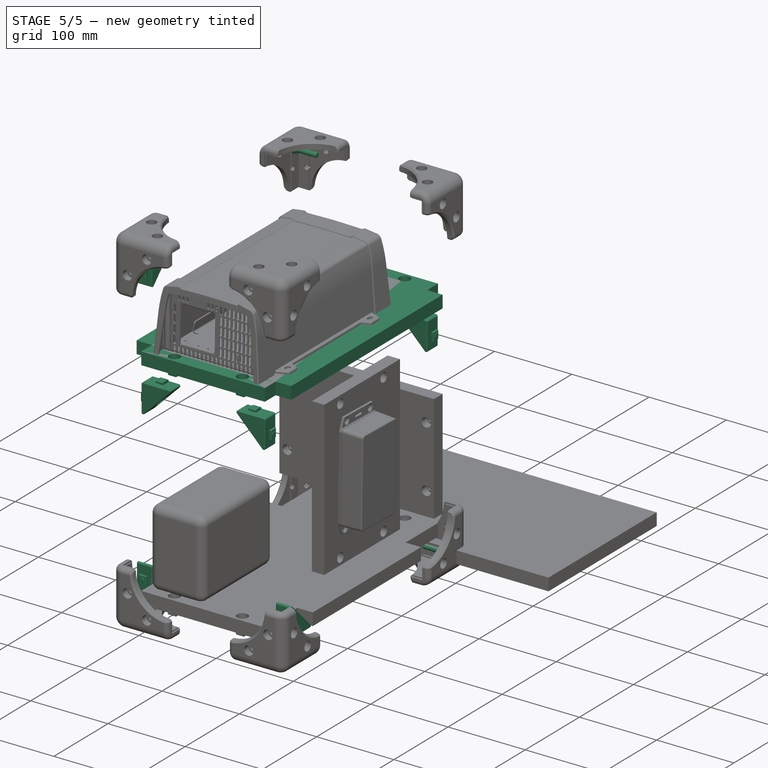
[diagram: stage 5 of 5 — iso view after this stage's code; geometry added in this stage tinted green]
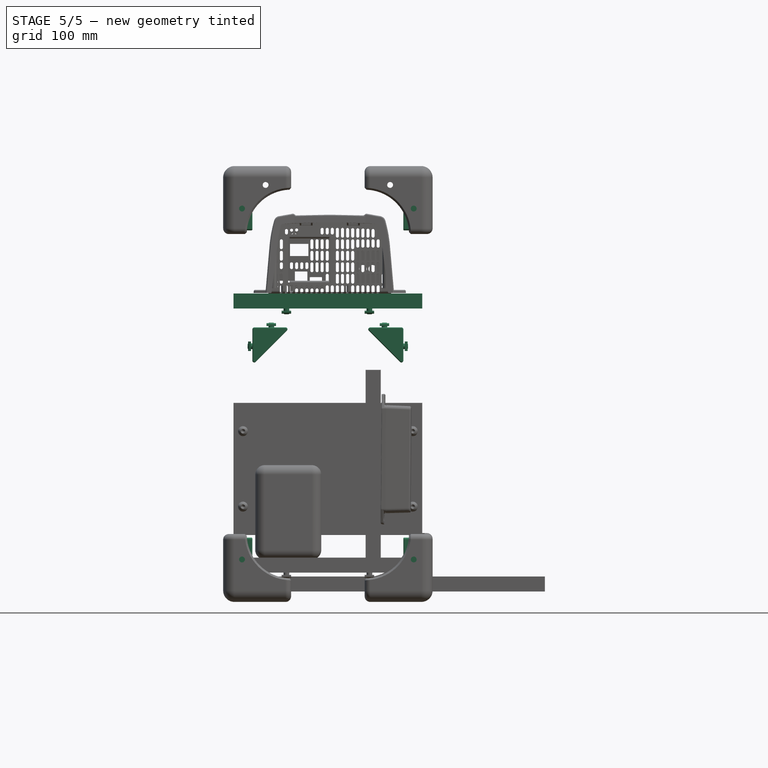
[diagram: stage 5 of 5 — front view after this stage's code; geometry added in this stage tinted green]
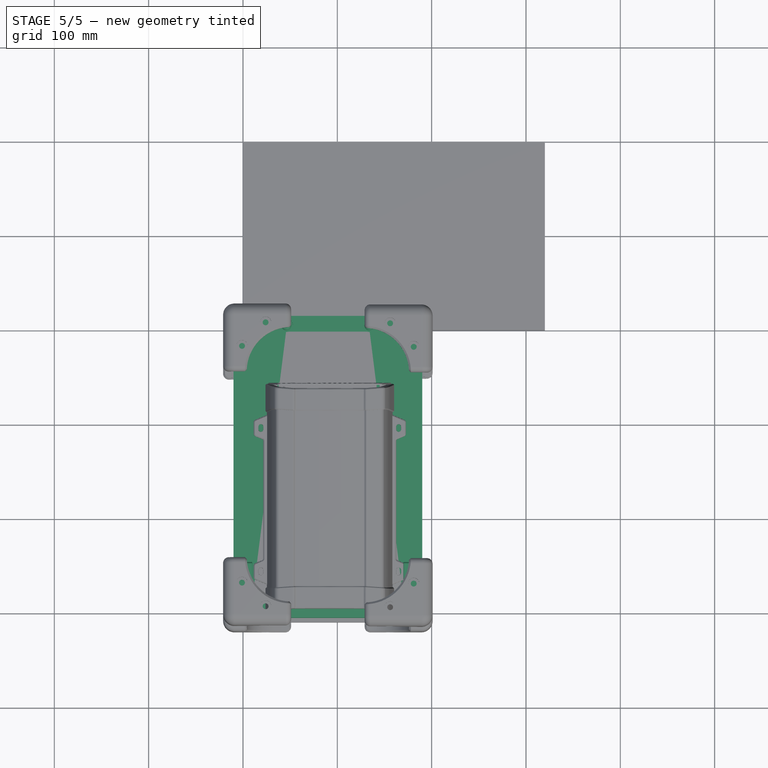
[diagram: stage 5 of 5 — top view after this stage's code; geometry added in this stage tinted green]
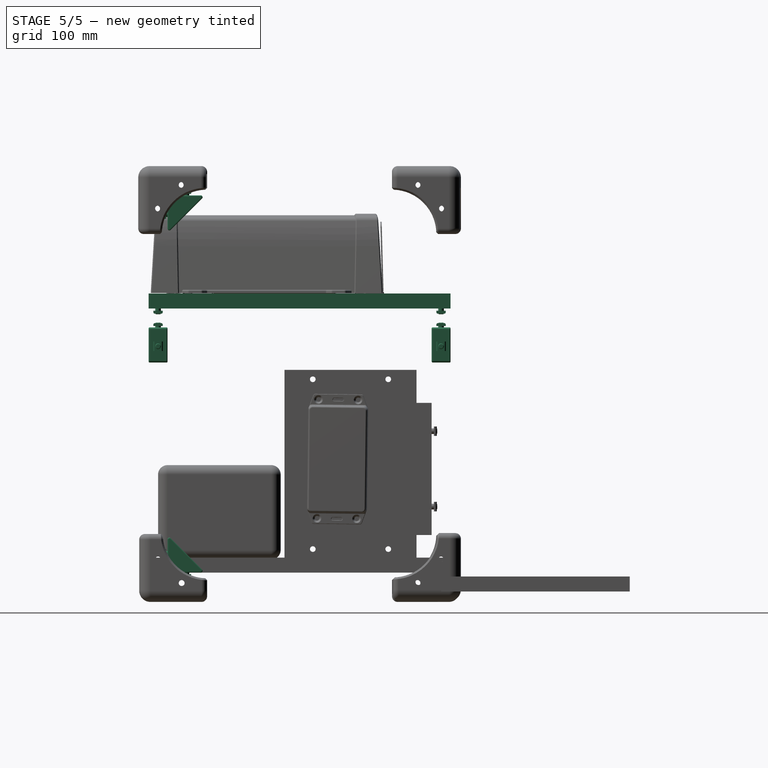
[diagram: stage 5 of 5 — right view after this stage's code; geometry added in this stage tinted green]
FEATURE [Part::Feature] Pocket001001  label="tslot40"
  Placement = pos=(0,0,20) rot=(0,0,1;0rad)
  shape: bbox 20 x 20 x 400 mm, 94 faces (baked)
FEATURE [Part::Feature] Pocket003001  label="tslot32con"
  Placement = pos=(0,10,10) rot=(1,0,0;1.5708rad)
  shape: bbox 20 x 320 x 20 mm, 150 faces (baked)
FEATURE [Part::Feature] Pocket003002  label="tslot16"
  Placement = pos=(10,0,10) rot=(0,1,0;1.5708rad)
  shape: bbox 160 x 20 x 20 mm, 94 faces (baked)
FEATURE [Part::Feature] Pocket003006  label="tslot16_001"
  Placement = pos=(10,-300,10) rot=(0,1,0;1.5708rad)
  shape: bbox 160 x 20 x 20 mm, 94 faces (baked)
FEATURE [Part::Feature] Pocket003007  label="tslot32con_001"
  Placement = pos=(180,-310,10) rot=(0,0.707107,0.707107;3.14159rad)
  shape: bbox 20 x 320 x 20 mm, 150 faces (baked)
FEATURE [Part::FeaturePython] Screw  label="M6x25-Screw"  # Fasteners workbench fastener (typed FeaturePython)
  Placement = pos=(-4,0,10) rot=(0,-1,0;1.5708rad)
  diameter = 7
  invert = false
  length = 6
  matchOuter = false
  offset = 0
  thread = false
  type = 15
FEATURE [Part::FeaturePython] Screw001  label="M6x25-Screw004"  # Fasteners workbench fastener (typed FeaturePython)
  Placement = pos=(-4,-300,10) rot=(0,-1,0;1.5708rad)
  diameter = 7
  invert = false
  length = 6
  matchOuter = false
  offset = 0
  thread = false
  type = 15
FEATURE [Part::FeaturePython] Screw002  label="M6x25-Screw005"  # Fasteners workbench fastener (typed FeaturePython)
  Placement = pos=(184,0,10) rot=(0,1,0;1.5708rad)
  diameter = 7
  invert = false
  length = 6
  matchOuter = false
  offset = 0
  thread = false
  type = 15
FEATURE [Part::FeaturePython] Screw004  label="M6x25-Screw006"  # Fasteners workbench fastener (typed FeaturePython)
  Placement = pos=(184,-300,10) rot=(0,1,0;1.5708rad)
  diameter = 7
  invert = false
  length = 6
  matchOuter = false
  offset = 0
  thread = false
  type = 15
FEATURE [Part::Feature] Pocket003008  label="tslot32con001"
  Placement = pos=(0,10,430) rot=(1,0,0;1.5708rad)
  shape: bbox 20 x 320 x 20 mm, 150 faces (baked)
FEATURE [Part::Feature] Pocket003009  label="tslot041"
  Placement = pos=(10,0,430) rot=(0,1,0;1.5708rad)
  shape: bbox 160 x 20 x 20 mm, 94 faces (baked)
FEATURE [Part::Feature] Pocket003010  label="tslot16_002"
  Placement = pos=(10,-300,430) rot=(0,1,0;1.5708rad)
  shape: bbox 160 x 20 x 20 mm, 94 faces (baked)
FEATURE [Part::Feature] Pocket003011  label="tslot32con_002"
  Placement = pos=(180,-310,430) rot=(0,0.707107,0.707107;3.14159rad)
  shape: bbox 20 x 320 x 20 mm, 150 faces (baked)
FEATURE [Part::FeaturePython] Screw005  label="M6x25-Screw007"  # Fasteners workbench fastener (typed FeaturePython)
  Placement = pos=(-4,0,430) rot=(0,-1,0;1.5708rad)
  diameter = 7
  invert = false
  length = 6
  matchOuter = false
  offset = 0
  thread = false
  type = 15
FEATURE [Part::FeaturePython] Screw006  label="M6x25-Screw008"  # Fasteners workbench fastener (typed FeaturePython)
  Placement = pos=(-4,-300,430) rot=(0,-1,0;1.5708rad)
  diameter = 7
  invert = false
  length = 6
  matchOuter = false
  offset = 0
  thread = false
  type = 15
FEATURE [Part::FeaturePython] Screw007  label="M6x25-Screw009"  # Fasteners workbench fastener (typed FeaturePython)
  Placement = pos=(184,0,430) rot=(0,1,0;1.5708rad)
  diameter = 7
  invert = false
  length = 6
  matchOuter = false
  offset = 0
  thread = false
  type = 15
FEATURE [Part::FeaturePython] Screw008  label="M6x25-Screw010"  # Fasteners workbench fastener (typed FeaturePython)
  Placement = pos=(184,-300,430) rot=(0,1,0;1.5708rad)
  diameter = 7
  invert = false
  length = 6
  matchOuter = false
  offset = 0
  thread = false
  type = 15
FEATURE [Part::Feature] Pocket003012  label="tslot042"
  Placement = pos=(180,0,20) rot=(0,0,1;0rad)
  shape: bbox 20 x 20 x 400 mm, 94 faces (baked)
FEATURE [Part::Feature] Pocket003013  label="tslot043"
  Placement = pos=(180,-300,20) rot=(0,0,1;0rad)
  shape: bbox 20 x 20 x 400 mm, 94 faces (baked)
FEATURE [Part::Feature] Pocket003014  label="tslot044"
  Placement = pos=(0,-300,20) rot=(0,0,1;0rad)
  shape: bbox 20 x 20 x 400 mm, 94 faces (baked)
FEATURE [Part::Feature] Body009001  label="m6nutplate010"
  Placement = pos=(-1.5,15,5) rot=(0,-1,0;1.5708rad)
  shape: bbox 3 x 10 x 10 mm, 9 faces (baked)
FEATURE [Part::Feature] Body010001  label="m6nutplate011"
  Placement = pos=(15,41.5,5) rot=(0.57735,0.57735,0.57735;4.18879rad)
  shape: bbox 10 x 3 x 10 mm, 9 faces (baked)
FEATURE [Part::Feature] Screw018001  label="M6x12-Screw010"
  Placement = pos=(20,33,10) rot=(1,0,0;1.5708rad)
  shape: bbox 10.5 x 15.3 x 10.5 mm, 15 faces (baked)
FEATURE [Part::Feature] Screw017001  label="M6x12-Screw011"
  Placement = pos=(7,20,10) rot=(0,1,0;1.5708rad)
  shape: bbox 15.3 x 10.5 x 10.5 mm, 15 faces (baked)
FEATURE [Part::Feature] Fillet004005001  label="Fillet004005037"
  shape: bbox 37.5 x 37.5 x 20 mm, 26 faces (baked)
FEATURE [Part::Compound] Compound
  Links = -> [Body009001,Fillet004005001,Screw017001,Body010001,Screw018001]
  Placement = pos=(10,-250,420) rot=(0.707107,0,-0.707107;3.14159rad)
FEATURE [Part::Feature] Body010002  label="m6nutplate012"
  Placement = pos=(-1.5,15,5) rot=(0,-1,0;1.5708rad)
  shape: bbox 3 x 10 x 10 mm, 9 faces (baked)
FEATURE [Part::Feature] Body010003  label="m6nutplate013"
  Placement = pos=(15,41.5,5) rot=(0.57735,0.57735,0.57735;4.18879rad)
  shape: bbox 10 x 3 x 10 mm, 9 faces (baked)
FEATURE [Part::Feature] Screw018002  label="M6x12-Screw012"
  Placement = pos=(20,33,10) rot=(1,0,0;1.5708rad)
  shape: bbox 10.5 x 15.3 x 10.5 mm, 15 faces (baked)
FEATURE [Part::Feature] Screw018003  label="M6x12-Screw013"
  Placement = pos=(7,20,10) rot=(0,1,0;1.5708rad)
  shape: bbox 15.3 x 10.5 x 10.5 mm, 15 faces (baked)
FEATURE [Part::Feature] Fillet004005002  label="Fillet011"
  shape: bbox 37.5 x 37.5 x 20 mm, 26 faces (baked)
FEATURE [Part::Compound] Compound001
  Links = -> [Body010002,Fillet004005002,Screw018003,Body010003,Screw018002]
  Placement = pos=(190,-250,420) rot=(0.707107,0,-0.707107;3.14159rad)
FEATURE [Part::Feature] Body010004  label="m6nutplate014"
  Placement = pos=(-1.5,15,5) rot=(0,-1,0;1.5708rad)
  shape: bbox 3 x 10 x 10 mm, 9 faces (baked)
FEATURE [Part::Feature] Body010005  label="m6nutplate015"
  Placement = pos=(15,41.5,5) rot=(0.57735,0.57735,0.57735;4.18879rad)
  shape: bbox 10 x 3 x 10 mm, 9 faces (baked)
FEATURE [Part::Feature] Screw018004  label="M6x12-Screw014"
  Placement = pos=(20,33,10) rot=(1,0,0;1.5708rad)
  shape: bbox 10.5 x 15.3 x 10.5 mm, 15 faces (baked)
FEATURE [Part::Feature] Screw018005  label="M6x12-Screw015"
  Placement = pos=(7,20,10) rot=(0,1,0;1.5708rad)
  shape: bbox 15.3 x 10.5 x 10.5 mm, 15 faces (baked)
FEATURE [Part::Feature] Fillet004005003  label="Fillet012"
  shape: bbox 37.5 x 37.5 x 20 mm, 26 faces (baked)
FEATURE [Part::Compound] Compound002
  Links = -> [Body010004,Fillet004005003,Screw018005,Body010005,Screw018004]
  Placement = pos=(10,-290,60) rot=(0.57735,0.57735,-0.57735;4.18879rad)
FEATURE [Part::Feature] Body010006  label="m6nutplate016"
  Placement = pos=(-1.5,15,5) rot=(0,-1,0;1.5708rad)
  shape: bbox 3 x 10 x 10 mm, 9 faces (baked)
FEATURE [Part::Feature] Body010007  label="m6nutplate017"
  Placement = pos=(15,41.5,5) rot=(0.57735,0.57735,0.57735;4.18879rad)
  shape: bbox 10 x 3 x 10 mm, 9 faces (baked)
FEATURE [Part::Feature] Screw018006  label="M6x12-Screw016"
  Placement = pos=(20,33,10) rot=(1,0,0;1.5708rad)
  shape: bbox 10.5 x 15.3 x 10.5 mm, 15 faces (baked)
FEATURE [Part::Feature] Screw018007  label="M6x12-Screw017"
  Placement = pos=(7,20,10) rot=(0,1,0;1.5708rad)
  shape: bbox 15.3 x 10.5 x 10.5 mm, 15 faces (baked)
FEATURE [Part::Feature] Fillet004005004  label="Fillet013"
  shape: bbox 37.5 x 37.5 x 20 mm, 26 faces (baked)
FEATURE [Part::Compound] Compound003
  Links = -> [Body010006,Fillet004005004,Screw018007,Body010007,Screw018006]
  Placement = pos=(190,-290,60) rot=(0.57735,0.57735,-0.57735;4.18879rad)
FEATURE [Part::Feature] Pocket003015  label="tslot16_across"
  Placement = pos=(10,0,290) rot=(0,1,0;1.5708rad)
  shape: bbox 160 x 20 x 20 mm, 94 faces (baked)
FEATURE [Part::Feature] Pocket003016  label="tslot16_across001"
  Placement = pos=(10,-300,290) rot=(0,1,0;1.5708rad)
  shape: bbox 160 x 20 x 20 mm, 94 faces (baked)
FEATURE [Part::Feature] Body010008  label="m6nutplate018"
  Placement = pos=(-1.5,15,5) rot=(0,-1,0;1.5708rad)
  shape: bbox 3 x 10 x 10 mm, 9 faces (baked)
FEATURE [Part::Feature] Body010009  label="m6nutplate019"
  Placement = pos=(15,41.5,5) rot=(0.57735,0.57735,0.57735;4.18879rad)
  shape: bbox 10 x 3 x 10 mm, 9 faces (baked)
FEATURE [Part::Feature] Screw018008  label="M6x12-Screw018"
  Placement = pos=(20,33,10) rot=(1,0,0;1.5708rad)
  shape: bbox 10.5 x 15.3 x 10.5 mm, 15 faces (baked)
FEATURE [Part::Feature] Screw018009  label="M6x12-Screw019"
  Placement = pos=(7,20,10) rot=(0,1,0;1.5708rad)
  shape: bbox 15.3 x 10.5 x 10.5 mm, 15 faces (baked)
FEATURE [Part::Feature] Fillet004005005  label="Fillet014"
  shape: bbox 37.5 x 37.5 x 20 mm, 26 faces (baked)
FEATURE [Part::Compound] Compound004
  Links = -> [Body010008,Fillet004005005,Screw018009,Body010009,Screw018008]
  Placement = pos=(10,-290,240) rot=(1,0,0;1.5708rad)
FEATURE [Part::Feature] Body010010  label="m6nutplate020"
  Placement = pos=(-1.5,15,5) rot=(0,-1,0;1.5708rad)
  shape: bbox 3 x 10 x 10 mm, 9 faces (baked)
FEATURE [Part::Feature] Body010011  label="m6nutplate021"
  Placement = pos=(15,41.5,5) rot=(0.57735,0.57735,0.57735;4.18879rad)
  shape: bbox 10 x 3 x 10 mm, 9 faces (baked)
FEATURE [Part::Feature] Screw018010  label="M6x12-Screw020"
  Placement = pos=(20,33,10) rot=(1,0,0;1.5708rad)
  shape: bbox 10.5 x 15.3 x 10.5 mm, 15 faces (baked)
FEATURE [Part::Feature] Screw018011  label="M6x12-Screw021"
  Placement = pos=(7,20,10) rot=(0,1,0;1.5708rad)
  shape: bbox 15.3 x 10.5 x 10.5 mm, 15 faces (baked)
FEATURE [Part::Feature] Fillet004005006  label="Fillet015"
  shape: bbox 37.5 x 37.5 x 20 mm, 26 faces (baked)
FEATURE [Part::Compound] Compound005
  Links = -> [Body010010,Fillet004005006,Screw018011,Body010011,Screw018010]
  Placement = pos=(130,-290,280) rot=(0.57735,0.57735,-0.57735;2.0944rad)
FEATURE [Part::Feature] Body010012  label="m6nutplate022"
  Placement = pos=(-1.5,15,5) rot=(0,-1,0;1.5708rad)
  shape: bbox 3 x 10 x 10 mm, 9 faces (baked)
FEATURE [Part::Feature] Body010013  label="m6nutplate023"
  Placement = pos=(15,41.5,5) rot=(0.57735,0.57735,0.57735;4.18879rad)
  shape: bbox 10 x 3 x 10 mm, 9 faces (baked)
FEATURE [Part::Feature] Screw018012  label="M6x12-Screw022"
  Placement = pos=(20,33,10) rot=(1,0,0;1.5708rad)
  shape: bbox 10.5 x 15.3 x 10.5 mm, 15 faces (baked)
FEATURE [Part::Feature] Screw018013  label="M6x12-Screw023"
  Placement = pos=(7,20,10) rot=(0,1,0;1.5708rad)
  shape: bbox 15.3 x 10.5 x 10.5 mm, 15 faces (baked)
FEATURE [Part::Feature] Fillet004005007  label="Fillet016"
  shape: bbox 37.5 x 37.5 x 20 mm, 26 faces (baked)
FEATURE [Part::Compound] Compound006
  Links = -> [Body010012,Fillet004005007,Screw018013,Body010013,Screw018012]
  Placement = pos=(130,10,280) rot=(0.57735,0.57735,-0.57735;2.0944rad)
FEATURE [Part::Box] Box  label="Würfel"
  Height = 16
  Length = 320
  Width = 200
FEATURE [PartDesign::Body] Body
FEATURE [Sketcher::SketchObject] Sketch
  Placement = pos=(0,0,16) rot=(0,0,1;0rad)
  sketch-geometry (20):
    g0: LineSegment StartX=0 StartY=20 StartZ=0 EndX=20 EndY=20 EndZ=0
    g1: LineSegment StartX=20 StartY=20 StartZ=0 EndX=20 EndY=0 EndZ=0
    g2: LineSegment StartX=20 StartY=0 StartZ=0 EndX=0 EndY=0 EndZ=0
    g3: LineSegment StartX=0 StartY=0 StartZ=0 EndX=0 EndY=20 EndZ=0
    g4: LineSegment StartX=0 StartY=200 StartZ=0 EndX=20 EndY=200 EndZ=0
    g5: LineSegment StartX=20 StartY=200 StartZ=0 EndX=20 EndY=180 EndZ=0
    g6: LineSegment StartX=20 StartY=180 StartZ=0 EndX=0 EndY=180 EndZ=0
    g7: LineSegment StartX=0 StartY=180 StartZ=0 EndX=0 EndY=200 EndZ=0
    g8: LineSegment StartX=300 StartY=200 StartZ=0 EndX=320 EndY=200 EndZ=0
    g9: LineSegment StartX=320 StartY=200 StartZ=0 EndX=320 EndY=180 EndZ=0
    g10: LineSegment StartX=320 StartY=180 StartZ=0 EndX=300 EndY=180 EndZ=0
    g11: LineSegment StartX=300 StartY=180 StartZ=0 EndX=300 EndY=200 EndZ=0
    g12: LineSegment StartX=300 StartY=20 StartZ=0 EndX=320 EndY=20 EndZ=0
    g13: LineSegment StartX=320 StartY=20 StartZ=0 EndX=320 EndY=0 EndZ=0
    g14: LineSegment StartX=320 StartY=0 StartZ=0 EndX=300 EndY=0 EndZ=0
    g15: LineSegment StartX=300 StartY=0 StartZ=0 EndX=300 EndY=20 EndZ=0
    g16: Circle CenterX=10 CenterY=56 CenterZ=0 NormalX=0 NormalY=0 NormalZ=1 Radius=3
    g17: Circle CenterX=10 CenterY=144 CenterZ=0 NormalX=0 NormalY=0 NormalZ=1 Radius=3
    g18: Circle CenterX=310 CenterY=144 CenterZ=0 NormalX=0 NormalY=0 NormalZ=1 Radius=3
    g19: Circle CenterX=310 CenterY=56 CenterZ=0 NormalX=0 NormalY=0 NormalZ=1 Radius=3
  constraints (59):
    c: Coincident(g0,g1)
    c: Coincident(g1,g2)
    c: Coincident(g2,g3)
    c: Coincident(g3,g0)
    c: Horizontal(g0)
    c: Horizontal(g2)
    c: Vertical(g1)
    c: Vertical(g3)
    c: DistanceX(g0,g0) = 20
    c: DistanceY(g1,g1) = 20
    c: Coincident(g2,g-1)
    c: Coincident(g4,g5)
    c: Coincident(g5,g6)
    c: Coincident(g6,g7)
    c: Coincident(g7,g4)
    c: Horizontal(g4)
    c: Horizontal(g6)
    c: Vertical(g5)
    c: Vertical(g7)
    c: DistanceY(g-1,g4) = 200
    c: DistanceX(g0,g6) = 0
    c: DistanceX(g4,g4) = 20
    c: DistanceY(g5,g5) = 20
    c: Coincident(g8,g9)
    c: Coincident(g9,g10)
    c: Coincident(g10,g11)
    c: Coincident(g11,g8)
    c: Horizontal(g8)
    c: Horizontal(g10)
    c: Vertical(g9)
    c: Vertical(g11)
    c: DistanceX(g8,g8) = 20
    c: DistanceY(g9,g9) = 20
    c: DistanceX(g4,g8) = 320
    c: DistanceY(g8,g4) = 0
    c: Coincident(g12,g13)
    c: Coincident(g13,g14)
    c: Coincident(g14,g15)
    c: Coincident(g15,g12)
    c: Horizontal(g12)
    c: Horizontal(g14)
    c: Vertical(g13)
    c: Vertical(g15)
    c: DistanceX(g12,g12) = 20
    c: DistanceY(g13,g13) = 20
    c: DistanceY(g1,g14) = 0
    c: DistanceX(g-1,g13) = 320
    c: DistanceX(g16,g0) = 10
    c: DistanceY(g1,g16) = 56
    c: Radius(g16) = 3
    c: DistanceY(g17,g5) = 36
    c: DistanceX(g17,g5) = 10
    c: Radius(g17) = 3
    c: DistanceX(g18,g9) = 10
    c: DistanceY(g18,g10) = 36
    c: Radius(g18) = 3
    c: DistanceX(g19,g12) = 10
    c: DistanceY(g12,g19) = 36
    c: Radius(g19) = 3
FEATURE [PartDesign::Pocket] Pocket
  Length = 16
  Type = 0
FEATURE [Sketcher::SketchObject] Sketch001
  Placement = pos=(0,0,16) rot=(0,0,1;0rad)
  sketch-geometry (4):
    g0: Circle CenterX=10 CenterY=144 CenterZ=0 NormalX=0 NormalY=0 NormalZ=1 Radius=7
    g1: Circle CenterX=10 CenterY=56 CenterZ=0 NormalX=0 NormalY=0 NormalZ=1 Radius=7
    g2: Circle CenterX=310 CenterY=144 CenterZ=0 NormalX=0 NormalY=0 NormalZ=1 Radius=7
    g3: Circle CenterX=310 CenterY=56 CenterZ=0 NormalX=0 NormalY=0 NormalZ=1 Radius=7
  constraints (6):
    c: DistanceY(g-1,g1) = 56
    c: DistanceX(g-1,g1) = 10
    c: Radius(g1) = 7
    c: Equal(g0,g1)
    c: Equal(g0,g2)
    c: Equal(g2,g3)
FEATURE [Part::FeaturePython] Screw018014  label="M6x12-Screw024"  # Fasteners workbench fastener (typed FeaturePython)
  diameter = 4
  invert = false
  length = 1
  matchOuter = false
  offset = 0
  thread = false
  type = 20
FEATURE [Part::Feature] Body010014  label="m6nutplate024"
  Placement = pos=(5,-5,-8.39) rot=(0,1,0;3.14159rad)
  shape: bbox 10 x 10 x 3 mm, 9 faces (baked)
FEATURE [App::FeaturePython] circularEdgeConstraint01  # a2plus constraint (typed FeaturePython)
  Object1 = Screw
  Object2 = Body001
  SubElement1 = Edge7
  SubElement2 = Edge20
  Type = circularEdge
  directionConstraint = 1
  lockRotation = false
  offset = 0
FEATURE [Part::Compound] Compound007  label="nutplate12screw"
  Links = -> [Screw018014,circularEdgeConstraint01,Body010014]
  Placement = pos=(10,56,6) rot=(0,0,1;0rad)
FEATURE [Part::FeaturePython] Screw018015  label="M6x12-Screw025"  # Fasteners workbench fastener (typed FeaturePython)
  diameter = 4
  invert = false
  length = 1
  matchOuter = false
  offset = 0
  thread = false
  type = 20
FEATURE [Part::Feature] Body010015  label="m6nutplate025"
  Placement = pos=(5,-5,-8.39) rot=(0,1,0;3.14159rad)
  shape: bbox 10 x 10 x 3 mm, 9 faces (baked)
FEATURE [App::FeaturePython] circularEdgeConstraint002  # a2plus constraint (typed FeaturePython)
  Object1 = Screw
  Object2 = Body001
  SubElement1 = Edge7
  SubElement2 = Edge20
  Type = circularEdge
  directionConstraint = 1
  lockRotation = false
  offset = 0
FEATURE [Part::Compound] Compound008  label="nutplate12screw001"
  Links = -> [Screw018015,circularEdgeConstraint002,Body010015]
  Placement = pos=(10,144,6) rot=(0,0,1;0rad)
FEATURE [Part::FeaturePython] Screw018016  label="M6x12-Screw026"  # Fasteners workbench fastener (typed FeaturePython)
  diameter = 4
  invert = false
  length = 1
  matchOuter = false
  offset = 0
  thread = false
  type = 20
FEATURE [Part::Feature] Body010016  label="m6nutplate026"
  Placement = pos=(5,-5,-8.39) rot=(0,1,0;3.14159rad)
  shape: bbox 10 x 10 x 3 mm, 9 faces (baked)
FEATURE [App::FeaturePython] circularEdgeConstraint003  # a2plus constraint (typed FeaturePython)
  Object1 = Screw
  Object2 = Body001
  SubElement1 = Edge7
  SubElement2 = Edge20
  Type = circularEdge
  directionConstraint = 1
  lockRotation = false
  offset = 0
FEATURE [Part::Compound] Compound009  label="nutplate12screw002"
  Links = -> [Screw018016,circularEdgeConstraint003,Body010016]
  Placement = pos=(310,56,6) rot=(0,0,1;0rad)
FEATURE [Part::Compound] Compound011  label="top_plate3"
  Links = -> [Compound010,Body,Compound007,Compound008,Compound009]
  Placement = pos=(190,-310,300) rot=(0,0,1;1.5708rad)
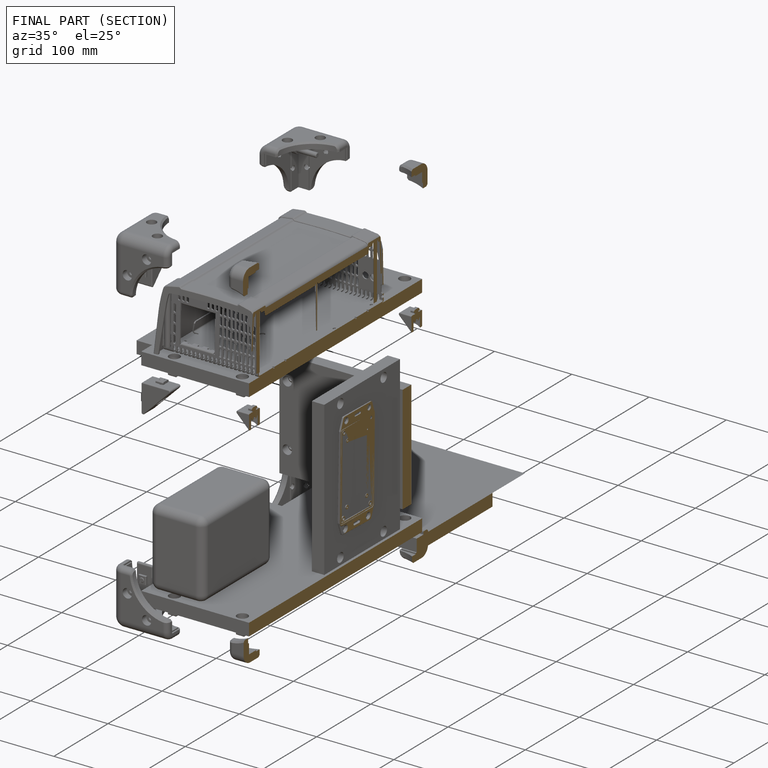
[diagram: finished part — half-section view (interior)]
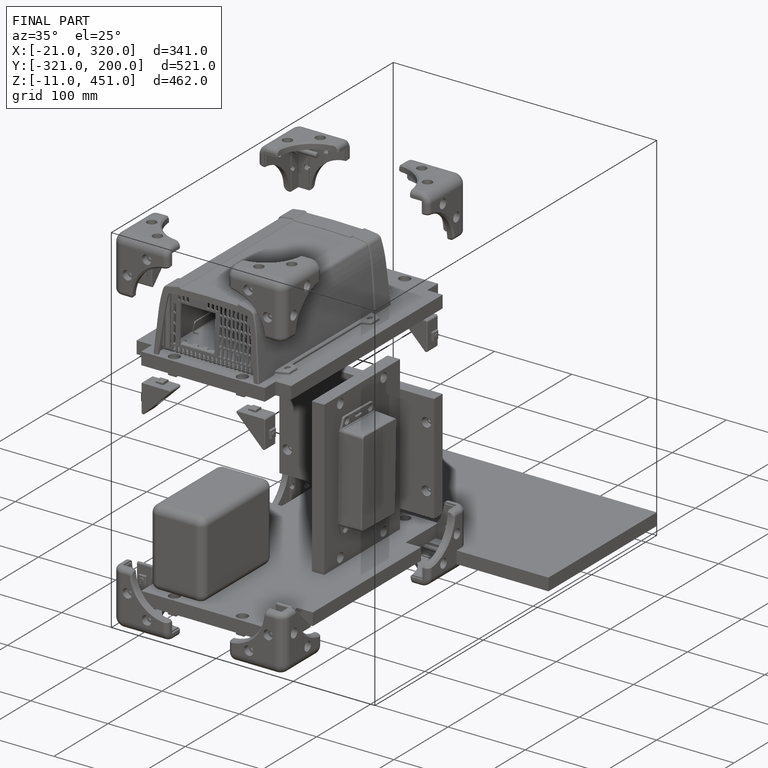
[diagram: finished part — iso view with bounding-box wireframe]
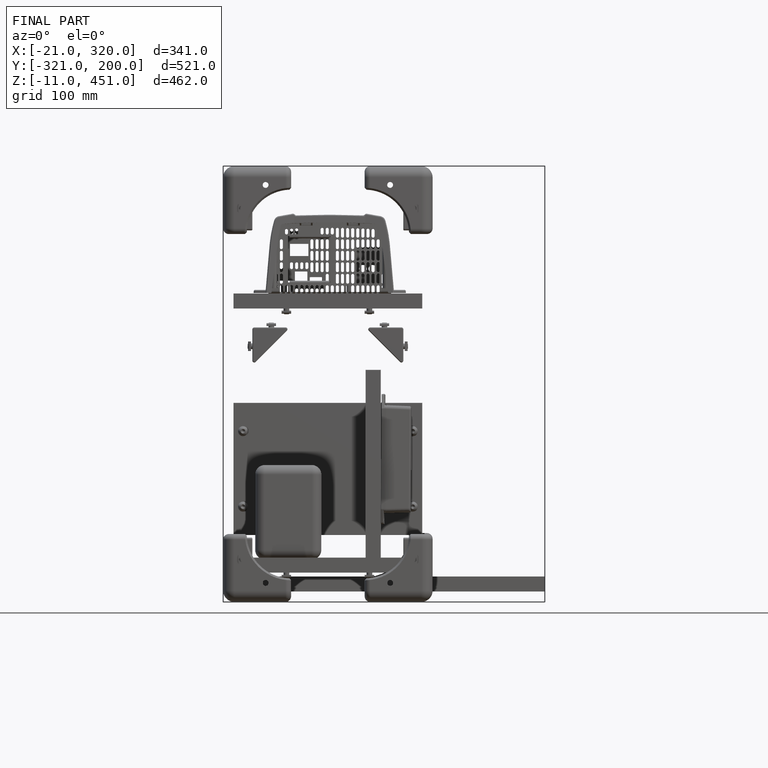
[diagram: finished part — front view with bounding-box wireframe]
